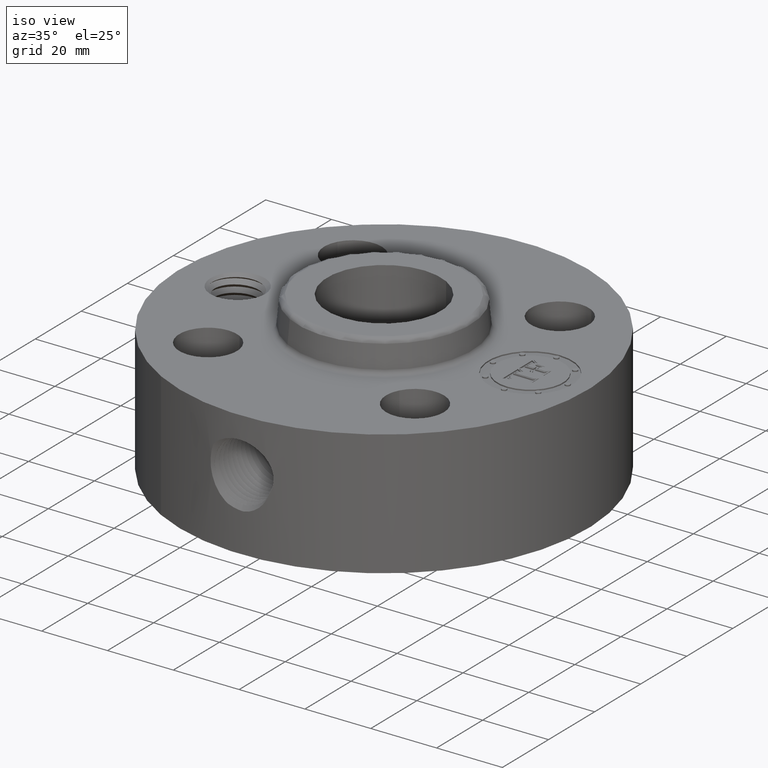
[diagram: clean part render]
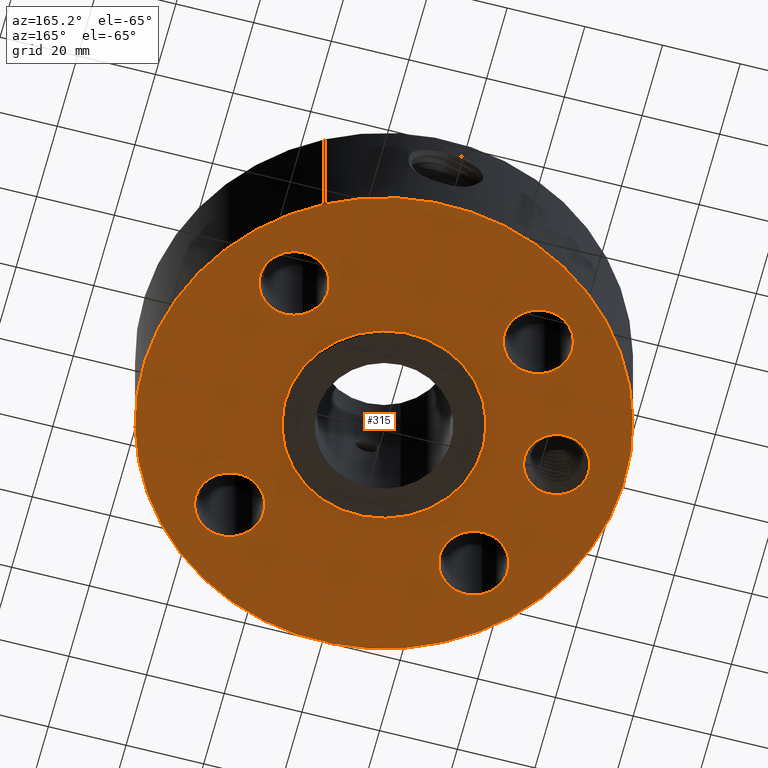
[diagram: tour spotlight — one face highlighted and labeled with its STEP entity id]
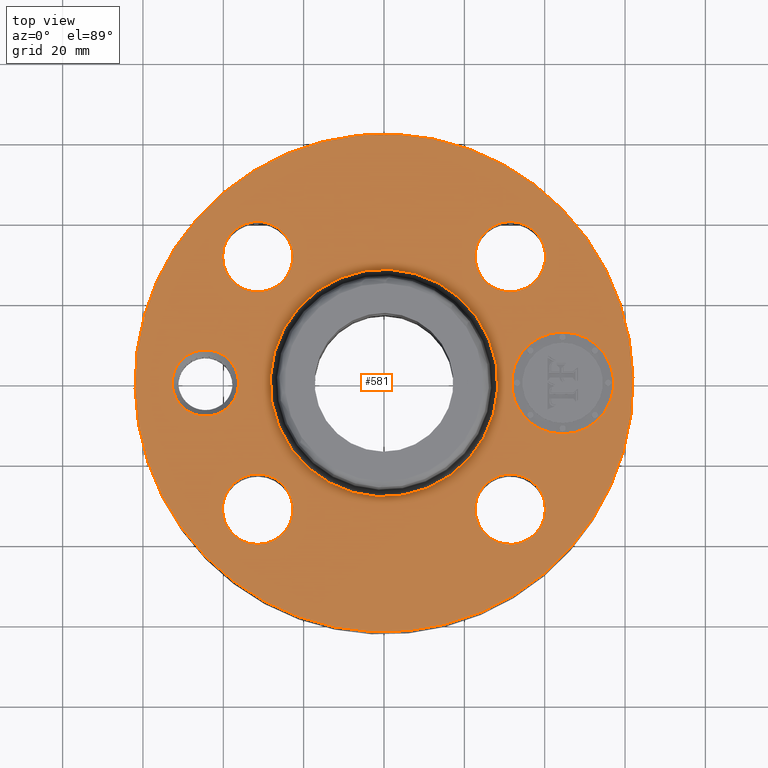
[diagram: tour spotlight — one face highlighted and labeled with its STEP entity id]
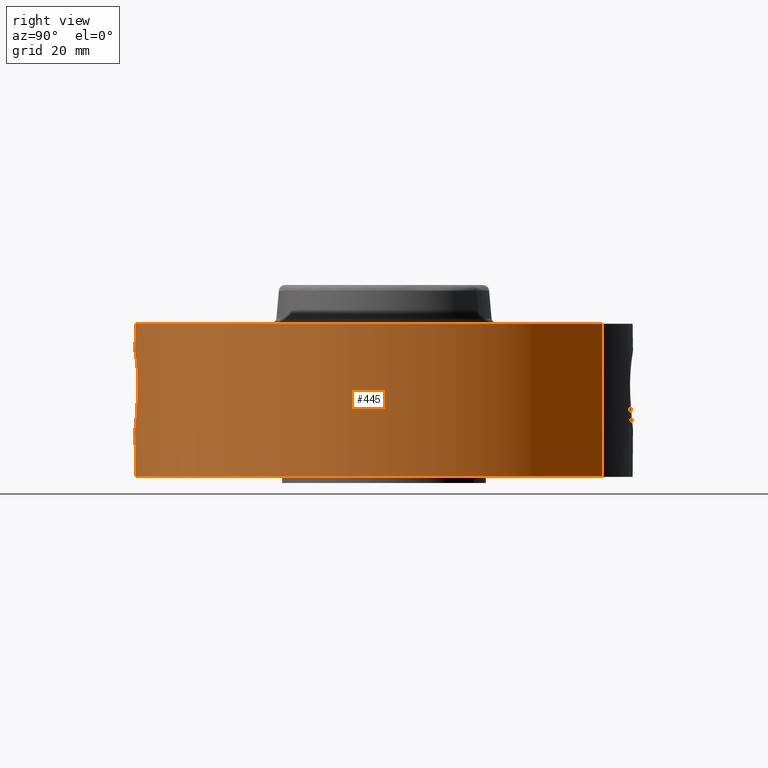
[diagram: tour spotlight — one face highlighted and labeled with its STEP entity id]
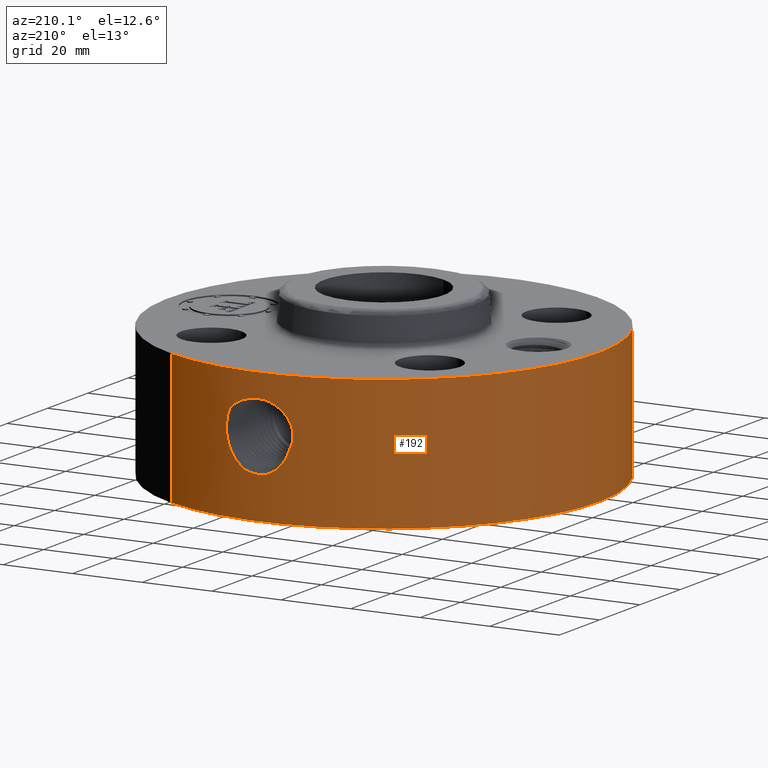
[diagram: tour spotlight — one face highlighted and labeled with its STEP entity id]
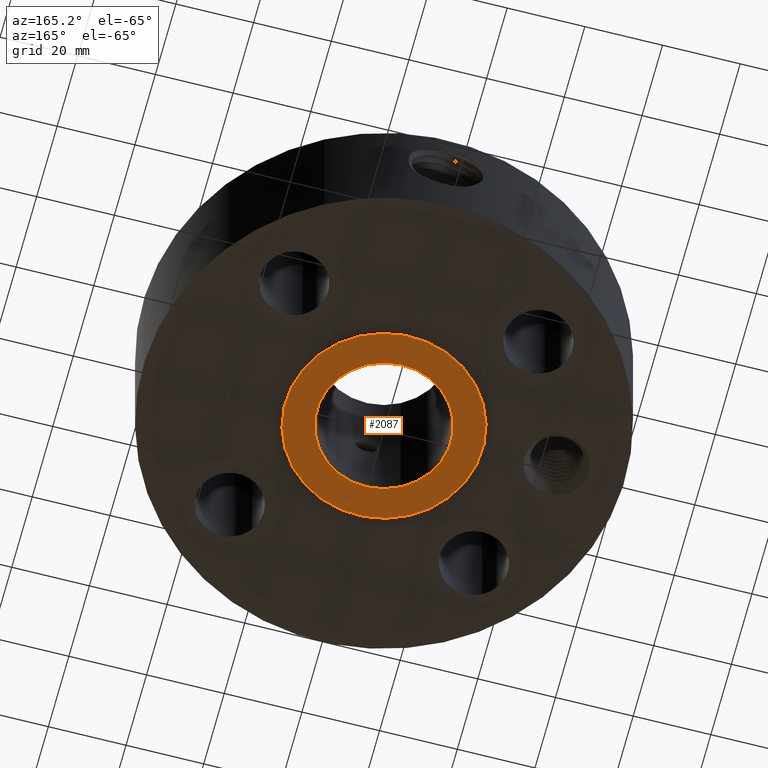
[diagram: tour spotlight — one face highlighted and labeled with its STEP entity id]
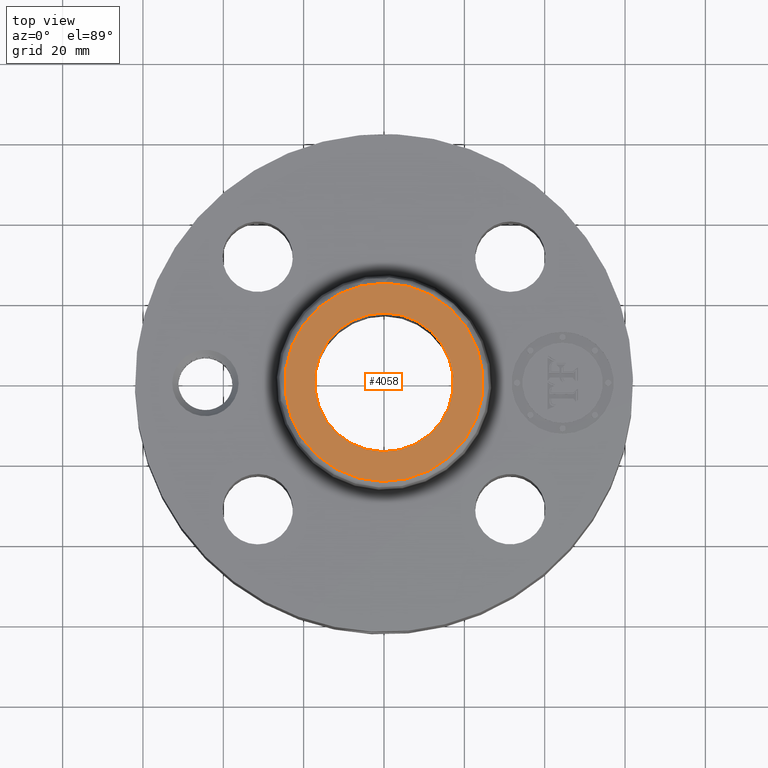
[diagram: tour spotlight — one face highlighted and labeled with its STEP entity id]
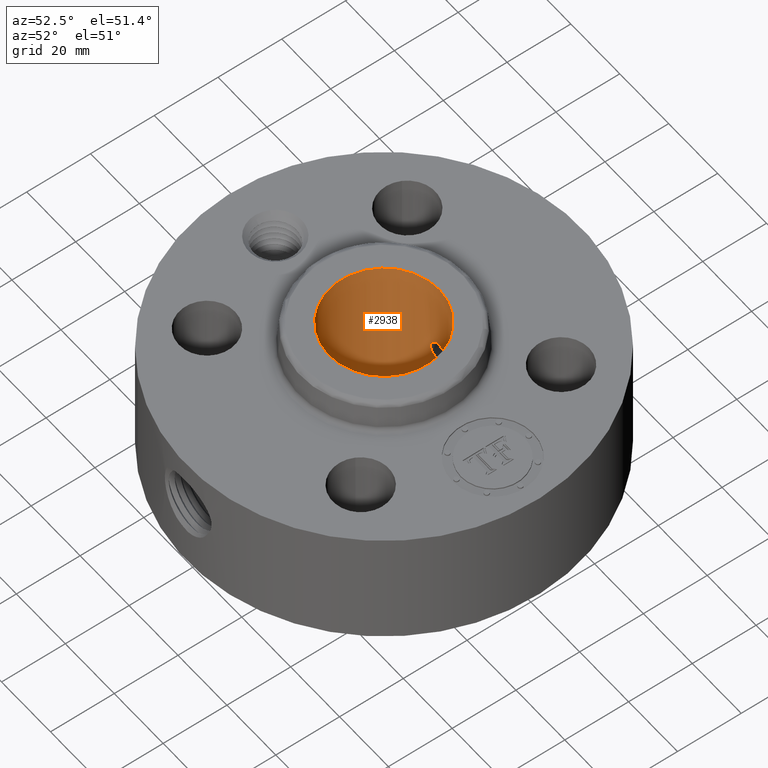
[diagram: tour spotlight — one face highlighted and labeled with its STEP entity id]
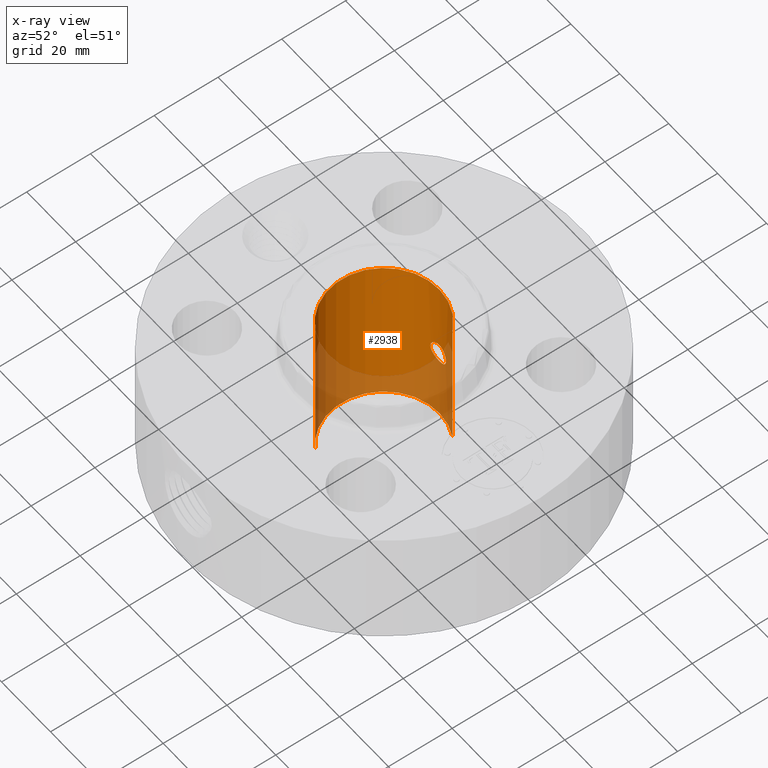
[diagram: x-ray of the same camera — body ghosted, this tour face saturated]
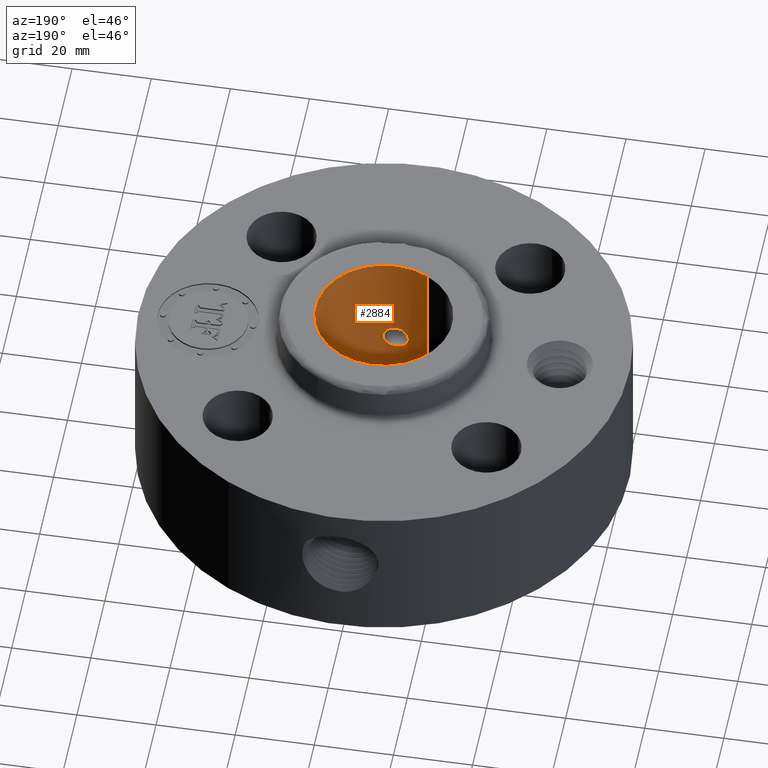
[diagram: tour spotlight — one face highlighted and labeled with its STEP entity id]
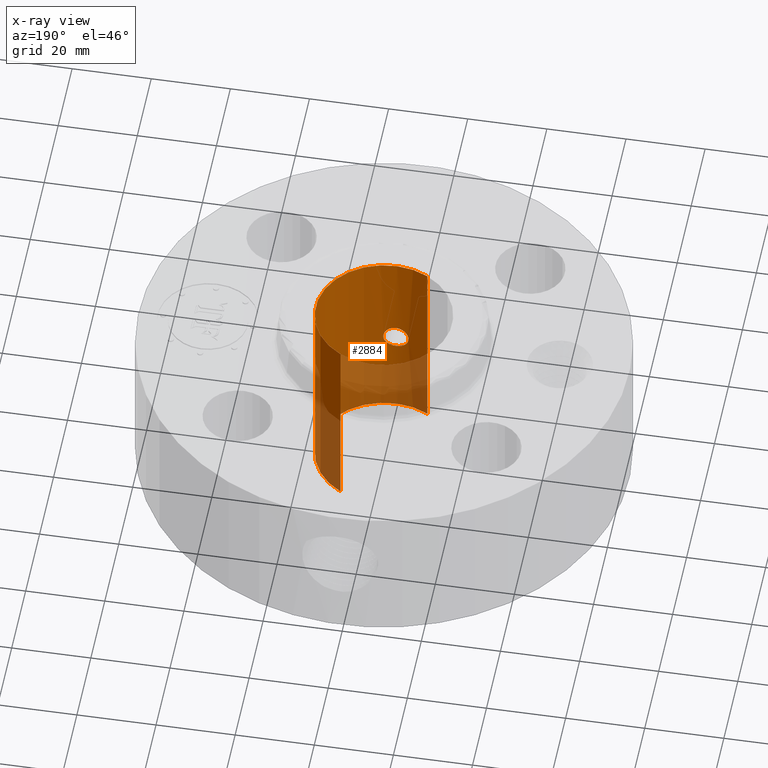
[diagram: x-ray of the same camera — body ghosted, this tour face saturated]
A machine part: a face-by-face anatomy tour. The part has 762 B-rep faces; the first image is the clean iso view, then the 8 largest visible faces are spotlighted one at a time (largest first), each with its STEP entity span.

Face 1 — auxiliary view, entity #315. In plain terms, the highlighted planar face has unit normal (0, 0, -1).
Definition (entity closure, byte-faithful):
#42=AXIS2_PLACEMENT_3D('Circle Axis2P3D',#40,#41,$) ;
#196=AXIS2_PLACEMENT_3D('Plane Axis2P3D',#193,#194,#195) ;
#200=AXIS2_PLACEMENT_3D('Circle Axis2P3D',#198,#199,$) ;
#209=AXIS2_PLACEMENT_3D('Circle Axis2P3D',#207,#208,$) ;
#218=AXIS2_PLACEMENT_3D('Circle Axis2P3D',#216,#217,$) ;
#227=AXIS2_PLACEMENT_3D('Circle Axis2P3D',#225,#226,$) ;
#236=AXIS2_PLACEMENT_3D('Circle Axis2P3D',#234,#235,$) ;
#245=AXIS2_PLACEMENT_3D('Circle Axis2P3D',#243,#244,$) ;
#254=AXIS2_PLACEMENT_3D('Circle Axis2P3D',#252,#253,$) ;
#263=AXIS2_PLACEMENT_3D('Circle Axis2P3D',#261,#262,$) ;
#272=AXIS2_PLACEMENT_3D('Circle Axis2P3D',#270,#271,$) ;
#281=AXIS2_PLACEMENT_3D('Circle Axis2P3D',#279,#280,$) ;
#290=AXIS2_PLACEMENT_3D('Circle Axis2P3D',#288,#289,$) ;
#299=AXIS2_PLACEMENT_3D('Circle Axis2P3D',#297,#298,$) ;
#308=AXIS2_PLACEMENT_3D('Circle Axis2P3D',#306,#307,$) ;
#40=CARTESIAN_POINT('Axis2P3D Location',(0.,0.,0.0600000000002)) ;
#44=CARTESIAN_POINT('Vertex',(-1.1697983142,-2.14130145102,0.0600000000002)) ;
#46=CARTESIAN_POINT('Vertex',(1.1697983142,2.14130145102,0.0600000000002)) ;
#193=CARTESIAN_POINT('Axis2P3D Location',(0.,1.,0.0600000000002)) ;
#198=CARTESIAN_POINT('Axis2P3D Location',(0.,0.,0.0600000000002)) ;
#207=CARTESIAN_POINT('Axis2P3D Location',(-1.75000000001,1.39870617276E-016,0.0600000000002)) ;
#211=CARTESIAN_POINT('Vertex',(-1.46423717829,-0.156112941009,0.0600000000002)) ;
#213=CARTESIAN_POINT('Vertex',(-2.03576282172,0.156112941009,0.0600000000002)) ;
#216=CARTESIAN_POINT('Axis2P3D Location',(-1.75000000001,1.39870617276E-016,0.0600000000002)) ;
#225=CARTESIAN_POINT('Axis2P3D Location',(1.23743686708,-1.23743686708,0.0600000000002)) ;
#229=CARTESIAN_POINT('Vertex',(1.54020285093,-1.4028386779,0.0600000000002)) ;
#231=CARTESIAN_POINT('Vertex',(0.934670883228,-1.07203505626,0.0600000000002)) ;
#234=CARTESIAN_POINT('Axis2P3D Location',(1.23743686708,-1.23743686708,0.0600000000002)) ;
#243=CARTESIAN_POINT('Axis2P3D Location',(0.,0.,0.0600000000002)) ;
#247=CARTESIAN_POINT('Vertex',(0.479425538606,0.877582561894,0.0600000000002)) ;
#249=CARTESIAN_POINT('Vertex',(-0.479425538606,-0.877582561894,0.0600000000002)) ;
#252=CARTESIAN_POINT('Axis2P3D Location',(0.,0.,0.0600000000002)) ;
#261=CARTESIAN_POINT('Axis2P3D Location',(-1.23743686708,-1.23743686708,0.0600000000002)) ;
#265=CARTESIAN_POINT('Vertex',(-1.07203505626,-0.934670883228,0.0600000000002)) ;
#267=CARTESIAN_POINT('Vertex',(-1.4028386779,-1.54020285093,0.0600000000002)) ;
#270=CARTESIAN_POINT('Axis2P3D Location',(-1.23743686708,-1.23743686708,0.0600000000002)) ;
#279=CARTESIAN_POINT('Axis2P3D Location',(-1.23743686708,1.23743686708,0.0600000000002)) ;
#283=CARTESIAN_POINT('Vertex',(-0.934670883228,1.07203505626,0.0600000000002)) ;
#285=CARTESIAN_POINT('Vertex',(-1.54020285093,1.4028386779,0.0600000000002)) ;
#288=CARTESIAN_POINT('Axis2P3D Location',(-1.23743686708,1.23743686708,0.0600000000002)) ;
#297=CARTESIAN_POINT('Axis2P3D Location',(1.23743686708,1.23743686708,0.0600000000002)) ;
#301=CARTESIAN_POINT('Vertex',(1.07203505626,0.934670883228,0.0600000000002)) ;
#303=CARTESIAN_POINT('Vertex',(1.4028386779,1.54020285093,0.0600000000002)) ;
#306=CARTESIAN_POINT('Axis2P3D Location',(1.23743686708,1.23743686708,0.0600000000002)) ;
#41=DIRECTION('Axis2P3D Direction',(0.,0.,-0.0393700787402)) ;
#194=DIRECTION('Axis2P3D Direction',(0.,0.,-0.0393700787402)) ;
#195=DIRECTION('Axis2P3D XDirection',(0.0393700787402,0.,0.)) ;
#199=DIRECTION('Axis2P3D Direction',(0.,0.,-0.0393700787402)) ;
#208=DIRECTION('Axis2P3D Direction',(0.,0.,-0.0393700787402)) ;
#217=DIRECTION('Axis2P3D Direction',(0.,0.,-0.0393700787402)) ;
#226=DIRECTION('Axis2P3D Direction',(0.,0.,-0.0393700787402)) ;
#235=DIRECTION('Axis2P3D Direction',(0.,0.,-0.0393700787402)) ;
#244=DIRECTION('Axis2P3D Direction',(0.,0.,-0.0393700787402)) ;
#253=DIRECTION('Axis2P3D Direction',(0.,0.,-0.0393700787402)) ;
#262=DIRECTION('Axis2P3D Direction',(0.,0.,-0.0393700787402)) ;
#271=DIRECTION('Axis2P3D Direction',(0.,0.,-0.0393700787402)) ;
#280=DIRECTION('Axis2P3D Direction',(0.,0.,-0.0393700787402)) ;
#289=DIRECTION('Axis2P3D Direction',(0.,0.,-0.0393700787402)) ;
#298=DIRECTION('Axis2P3D Direction',(0.,0.,-0.0393700787402)) ;
#307=DIRECTION('Axis2P3D Direction',(0.,0.,-0.0393700787402)) ;
#204=ORIENTED_EDGE('',*,*,#48,.T.) ;
#205=ORIENTED_EDGE('',*,*,#202,.T.) ;
#222=ORIENTED_EDGE('',*,*,#215,.F.) ;
#223=ORIENTED_EDGE('',*,*,#220,.F.) ;
#240=ORIENTED_EDGE('',*,*,#233,.F.) ;
#241=ORIENTED_EDGE('',*,*,#238,.F.) ;
#258=ORIENTED_EDGE('',*,*,#251,.F.) ;
#259=ORIENTED_EDGE('',*,*,#256,.F.) ;
#276=ORIENTED_EDGE('',*,*,#269,.F.) ;
#277=ORIENTED_EDGE('',*,*,#274,.F.) ;
#294=ORIENTED_EDGE('',*,*,#287,.F.) ;
#295=ORIENTED_EDGE('',*,*,#292,.F.) ;
#312=ORIENTED_EDGE('',*,*,#305,.F.) ;
#313=ORIENTED_EDGE('',*,*,#310,.F.) ;
#224=FACE_BOUND('',#221,.T.) ;
#242=FACE_BOUND('',#239,.T.) ;
#260=FACE_BOUND('',#257,.T.) ;
#278=FACE_BOUND('',#275,.T.) ;
#296=FACE_BOUND('',#293,.T.) ;
#314=FACE_BOUND('',#311,.T.) ;
#315=ADVANCED_FACE('PartBody',(#206,#224,#242,#260,#278,#296,#314),#197,.T.) ;
#43=CIRCLE('generated circle',#42,2.44000000001) ;
#201=CIRCLE('generated circle',#200,2.44000000001) ;
#210=CIRCLE('generated circle',#209,0.325625000001) ;
#219=CIRCLE('generated circle',#218,0.325625000001) ;
#228=CIRCLE('generated circle',#227,0.345000000001) ;
#237=CIRCLE('generated circle',#236,0.345000000001) ;
#246=CIRCLE('generated circle',#245,1.) ;
#255=CIRCLE('generated circle',#254,1.) ;
#264=CIRCLE('generated circle',#263,0.345000000001) ;
#273=CIRCLE('generated circle',#272,0.345000000001) ;
#282=CIRCLE('generated circle',#281,0.345000000001) ;
#291=CIRCLE('generated circle',#290,0.345000000001) ;
#300=CIRCLE('generated circle',#299,0.345000000001) ;
#309=CIRCLE('generated circle',#308,0.345000000001) ;
#48=EDGE_CURVE('',#45,#47,#43,.T.) ;
#202=EDGE_CURVE('',#47,#45,#201,.T.) ;
#215=EDGE_CURVE('',#212,#214,#210,.T.) ;
#220=EDGE_CURVE('',#214,#212,#219,.T.) ;
#233=EDGE_CURVE('',#230,#232,#228,.T.) ;
#238=EDGE_CURVE('',#232,#230,#237,.T.) ;
#251=EDGE_CURVE('',#248,#250,#246,.T.) ;
#256=EDGE_CURVE('',#250,#248,#255,.T.) ;
#269=EDGE_CURVE('',#266,#268,#264,.T.) ;
#274=EDGE_CURVE('',#268,#266,#273,.T.) ;
#287=EDGE_CURVE('',#284,#286,#282,.T.) ;
#292=EDGE_CURVE('',#286,#284,#291,.T.) ;
#305=EDGE_CURVE('',#302,#304,#300,.T.) ;
#310=EDGE_CURVE('',#304,#302,#309,.T.) ;
#203=EDGE_LOOP('',(#204,#205)) ;
#221=EDGE_LOOP('',(#222,#223)) ;
#239=EDGE_LOOP('',(#240,#241)) ;
#257=EDGE_LOOP('',(#258,#259)) ;
#275=EDGE_LOOP('',(#276,#277)) ;
#293=EDGE_LOOP('',(#294,#295)) ;
#311=EDGE_LOOP('',(#312,#313)) ;
#206=FACE_OUTER_BOUND('',#203,.T.) ;
#197=PLANE('',#196) ;
#45=VERTEX_POINT('',#44) ;
#47=VERTEX_POINT('',#46) ;
#212=VERTEX_POINT('',#211) ;
#214=VERTEX_POINT('',#213) ;
#230=VERTEX_POINT('',#229) ;
#232=VERTEX_POINT('',#231) ;
#248=VERTEX_POINT('',#247) ;
#250=VERTEX_POINT('',#249) ;
#266=VERTEX_POINT('',#265) ;
#268=VERTEX_POINT('',#267) ;
#284=VERTEX_POINT('',#283) ;
#286=VERTEX_POINT('',#285) ;
#302=VERTEX_POINT('',#301) ;
#304=VERTEX_POINT('',#303) ;

Face 2 — top view, entity #581. In plain terms, the highlighted planar face has unit normal (0, 0, -1).
Definition (entity closure, byte-faithful):
#58=AXIS2_PLACEMENT_3D('Circle Axis2P3D',#56,#57,$) ;
#318=AXIS2_PLACEMENT_3D('Circle Axis2P3D',#316,#317,$) ;
#449=AXIS2_PLACEMENT_3D('Plane Axis2P3D',#446,#447,#448) ;
#457=AXIS2_PLACEMENT_3D('Circle Axis2P3D',#455,#456,$) ;
#466=AXIS2_PLACEMENT_3D('Circle Axis2P3D',#464,#465,$) ;
#475=AXIS2_PLACEMENT_3D('Circle Axis2P3D',#473,#474,$) ;
#484=AXIS2_PLACEMENT_3D('Circle Axis2P3D',#482,#483,$) ;
#493=AXIS2_PLACEMENT_3D('Circle Axis2P3D',#491,#492,$) ;
#502=AXIS2_PLACEMENT_3D('Circle Axis2P3D',#500,#501,$) ;
#511=AXIS2_PLACEMENT_3D('Circle Axis2P3D',#509,#510,$) ;
#520=AXIS2_PLACEMENT_3D('Circle Axis2P3D',#518,#519,$) ;
#529=AXIS2_PLACEMENT_3D('Circle Axis2P3D',#527,#528,$) ;
#538=AXIS2_PLACEMENT_3D('Circle Axis2P3D',#536,#537,$) ;
#547=AXIS2_PLACEMENT_3D('Circle Axis2P3D',#545,#546,$) ;
#556=AXIS2_PLACEMENT_3D('Circle Axis2P3D',#554,#555,$) ;
#565=AXIS2_PLACEMENT_3D('Circle Axis2P3D',#563,#564,$) ;
#574=AXIS2_PLACEMENT_3D('Circle Axis2P3D',#572,#573,$) ;
#53=CARTESIAN_POINT('Vertex',(-1.1697983142,-2.14130145102,1.56000000001)) ;
#56=CARTESIAN_POINT('Axis2P3D Location',(0.,0.,1.56000000001)) ;
#60=CARTESIAN_POINT('Vertex',(1.1697983142,2.14130145102,1.56000000001)) ;
#316=CARTESIAN_POINT('Axis2P3D Location',(0.,0.,1.56000000001)) ;
#446=CARTESIAN_POINT('Axis2P3D Location',(0.,2.44000000001,1.56000000001)) ;
#455=CARTESIAN_POINT('Axis2P3D Location',(-1.75000000001,-1.39870617276E-015,1.56000000001)) ;
#459=CARTESIAN_POINT('Vertex',(-2.03576282172,0.156112941009,1.56000000001)) ;
#461=CARTESIAN_POINT('Vertex',(-1.46423717829,-0.156112941009,1.56000000001)) ;
#464=CARTESIAN_POINT('Axis2P3D Location',(-1.75000000001,-1.39870617276E-015,1.56000000001)) ;
#473=CARTESIAN_POINT('Axis2P3D Location',(1.23743686708,-1.23743686708,1.56000000001)) ;
#477=CARTESIAN_POINT('Vertex',(0.934670883228,-1.07203505626,1.56000000001)) ;
#479=CARTESIAN_POINT('Vertex',(1.54020285093,-1.4028386779,1.56000000001)) ;
#482=CARTESIAN_POINT('Axis2P3D Location',(1.23743686708,-1.23743686708,1.56000000001)) ;
#491=CARTESIAN_POINT('Axis2P3D Location',(0.,0.,1.56000000001)) ;
#495=CARTESIAN_POINT('Vertex',(-0.534549824921,-0.978486891162,1.56000000001)) ;
#497=CARTESIAN_POINT('Vertex',(0.534549824921,0.978486891162,1.56000000001)) ;
#500=CARTESIAN_POINT('Axis2P3D Location',(0.,0.,1.56000000001)) ;
#509=CARTESIAN_POINT('Axis2P3D Location',(-1.23743686708,-1.23743686708,1.56000000001)) ;
#513=CARTESIAN_POINT('Vertex',(-1.4028386779,-1.54020285093,1.56000000001)) ;
#515=CARTESIAN_POINT('Vertex',(-1.07203505626,-0.934670883228,1.56000000001)) ;
#518=CARTESIAN_POINT('Axis2P3D Location',(-1.23743686708,-1.23743686708,1.56000000001)) ;
#527=CARTESIAN_POINT('Axis2P3D Location',(-1.23743686708,1.23743686708,1.56000000001)) ;
#531=CARTESIAN_POINT('Vertex',(-1.54020285093,1.4028386779,1.56000000001)) ;
#533=CARTESIAN_POINT('Vertex',(-0.934670883228,1.07203505626,1.56000000001)) ;
#536=CARTESIAN_POINT('Axis2P3D Location',(-1.23743686708,1.23743686708,1.56000000001)) ;
#545=CARTESIAN_POINT('Axis2P3D Location',(1.23743686708,1.23743686708,1.56000000001)) ;
#549=CARTESIAN_POINT('Vertex',(1.4028386779,1.54020285093,1.56000000001)) ;
#551=CARTESIAN_POINT('Vertex',(1.07203505626,0.934670883228,1.56000000001)) ;
#554=CARTESIAN_POINT('Axis2P3D Location',(1.23743686708,1.23743686708,1.56000000001)) ;
#563=CARTESIAN_POINT('Axis2P3D Location',(1.75000000001,2.79741234551E-016,1.56000000001)) ;
#567=CARTESIAN_POINT('Vertex',(1.75000000001,0.499999995002,1.56000000001)) ;
#569=CARTESIAN_POINT('Vertex',(1.75000000001,-0.499999995002,1.56000000001)) ;
#572=CARTESIAN_POINT('Axis2P3D Location',(1.75000000001,2.79741234551E-016,1.56000000001)) ;
#57=DIRECTION('Axis2P3D Direction',(0.,0.,-0.0393700787402)) ;
#317=DIRECTION('Axis2P3D Direction',(0.,0.,-0.0393700787402)) ;
#447=DIRECTION('Axis2P3D Direction',(0.,0.,-0.0393700787402)) ;
#448=DIRECTION('Axis2P3D XDirection',(0.0393700787402,0.,0.)) ;
#456=DIRECTION('Axis2P3D Direction',(0.,0.,-0.0393700787402)) ;
#465=DIRECTION('Axis2P3D Direction',(0.,0.,-0.0393700787402)) ;
#474=DIRECTION('Axis2P3D Direction',(0.,0.,-0.0393700787402)) ;
#483=DIRECTION('Axis2P3D Direction',(0.,0.,-0.0393700787402)) ;
#492=DIRECTION('Axis2P3D Direction',(0.,0.,-0.0393700787402)) ;
#501=DIRECTION('Axis2P3D Direction',(0.,0.,-0.0393700787402)) ;
#510=DIRECTION('Axis2P3D Direction',(0.,0.,-0.0393700787402)) ;
#519=DIRECTION('Axis2P3D Direction',(0.,0.,-0.0393700787402)) ;
#528=DIRECTION('Axis2P3D Direction',(0.,0.,-0.0393700787402)) ;
#537=DIRECTION('Axis2P3D Direction',(0.,0.,-0.0393700787402)) ;
#546=DIRECTION('Axis2P3D Direction',(0.,0.,-0.0393700787402)) ;
#555=DIRECTION('Axis2P3D Direction',(0.,0.,-0.0393700787402)) ;
#564=DIRECTION('Axis2P3D Direction',(0.,0.,-0.0393700787402)) ;
#573=DIRECTION('Axis2P3D Direction',(0.,0.,-0.0393700787402)) ;
#452=ORIENTED_EDGE('',*,*,#320,.F.) ;
#453=ORIENTED_EDGE('',*,*,#62,.F.) ;
#470=ORIENTED_EDGE('',*,*,#463,.T.) ;
#471=ORIENTED_EDGE('',*,*,#468,.T.) ;
#488=ORIENTED_EDGE('',*,*,#481,.T.) ;
#489=ORIENTED_EDGE('',*,*,#486,.T.) ;
#506=ORIENTED_EDGE('',*,*,#499,.T.) ;
#507=ORIENTED_EDGE('',*,*,#504,.T.) ;
#524=ORIENTED_EDGE('',*,*,#517,.T.) ;
#525=ORIENTED_EDGE('',*,*,#522,.T.) ;
#542=ORIENTED_EDGE('',*,*,#535,.T.) ;
#543=ORIENTED_EDGE('',*,*,#540,.T.) ;
#560=ORIENTED_EDGE('',*,*,#553,.T.) ;
#561=ORIENTED_EDGE('',*,*,#558,.T.) ;
#578=ORIENTED_EDGE('',*,*,#571,.T.) ;
#579=ORIENTED_EDGE('',*,*,#576,.T.) ;
#472=FACE_BOUND('',#469,.T.) ;
#490=FACE_BOUND('',#487,.T.) ;
#508=FACE_BOUND('',#505,.T.) ;
#526=FACE_BOUND('',#523,.T.) ;
#544=FACE_BOUND('',#541,.T.) ;
#562=FACE_BOUND('',#559,.T.) ;
#580=FACE_BOUND('',#577,.T.) ;
#581=ADVANCED_FACE('PartBody',(#454,#472,#490,#508,#526,#544,#562,#580),#450,.F.) ;
#59=CIRCLE('generated circle',#58,2.44000000001) ;
#319=CIRCLE('generated circle',#318,2.44000000001) ;
#458=CIRCLE('generated circle',#457,0.325625000001) ;
#467=CIRCLE('generated circle',#466,0.325625000001) ;
#476=CIRCLE('generated circle',#475,0.345000000001) ;
#485=CIRCLE('generated circle',#484,0.345000000001) ;
#494=CIRCLE('generated circle',#493,1.11497987045) ;
#503=CIRCLE('generated circle',#502,1.11497987045) ;
#512=CIRCLE('generated circle',#511,0.345000000001) ;
#521=CIRCLE('generated circle',#520,0.345000000001) ;
#530=CIRCLE('generated circle',#529,0.345000000001) ;
#539=CIRCLE('generated circle',#538,0.345000000001) ;
#548=CIRCLE('generated circle',#547,0.345000000001) ;
#557=CIRCLE('generated circle',#556,0.345000000001) ;
#566=CIRCLE('generated circle',#565,0.499999995002) ;
#575=CIRCLE('generated circle',#574,0.499999995002) ;
#62=EDGE_CURVE('',#54,#61,#59,.T.) ;
#320=EDGE_CURVE('',#61,#54,#319,.T.) ;
#463=EDGE_CURVE('',#460,#462,#458,.T.) ;
#468=EDGE_CURVE('',#462,#460,#467,.T.) ;
#481=EDGE_CURVE('',#478,#480,#476,.T.) ;
#486=EDGE_CURVE('',#480,#478,#485,.T.) ;
#499=EDGE_CURVE('',#496,#498,#494,.T.) ;
#504=EDGE_CURVE('',#498,#496,#503,.T.) ;
#517=EDGE_CURVE('',#514,#516,#512,.T.) ;
#522=EDGE_CURVE('',#516,#514,#521,.T.) ;
#535=EDGE_CURVE('',#532,#534,#530,.T.) ;
#540=EDGE_CURVE('',#534,#532,#539,.T.) ;
#553=EDGE_CURVE('',#550,#552,#548,.T.) ;
#558=EDGE_CURVE('',#552,#550,#557,.T.) ;
#571=EDGE_CURVE('',#568,#570,#566,.T.) ;
#576=EDGE_CURVE('',#570,#568,#575,.T.) ;
#451=EDGE_LOOP('',(#452,#453)) ;
#469=EDGE_LOOP('',(#470,#471)) ;
#487=EDGE_LOOP('',(#488,#489)) ;
#505=EDGE_LOOP('',(#506,#507)) ;
#523=EDGE_LOOP('',(#524,#525)) ;
#541=EDGE_LOOP('',(#542,#543)) ;
#559=EDGE_LOOP('',(#560,#561)) ;
#577=EDGE_LOOP('',(#578,#579)) ;
#454=FACE_OUTER_BOUND('',#451,.T.) ;
#450=PLANE('',#449) ;
#54=VERTEX_POINT('',#53) ;
#61=VERTEX_POINT('',#60) ;
#460=VERTEX_POINT('',#459) ;
#462=VERTEX_POINT('',#461) ;
#478=VERTEX_POINT('',#477) ;
#480=VERTEX_POINT('',#479) ;
#496=VERTEX_POINT('',#495) ;
#498=VERTEX_POINT('',#497) ;
#514=VERTEX_POINT('',#513) ;
#516=VERTEX_POINT('',#515) ;
#532=VERTEX_POINT('',#531) ;
#534=VERTEX_POINT('',#533) ;
#550=VERTEX_POINT('',#549) ;
#552=VERTEX_POINT('',#551) ;
#568=VERTEX_POINT('',#567) ;
#570=VERTEX_POINT('',#569) ;

Face 3 — right view, entity #445. In plain terms, the highlighted cylindrical surface (partial cylindrical patch) has radius 61.976 mm, axis along (0, 0, -1).
Definition (entity closure, byte-faithful):
#38=AXIS2_PLACEMENT_3D('Cylinder Axis2P3D',#35,#36,#37) ;
#200=AXIS2_PLACEMENT_3D('Circle Axis2P3D',#198,#199,$) ;
#318=AXIS2_PLACEMENT_3D('Circle Axis2P3D',#316,#317,$) ;
#35=CARTESIAN_POINT('Axis2P3D Location',(0.,0.,0.970000000004)) ;
#44=CARTESIAN_POINT('Vertex',(-1.1697983142,-2.14130145102,0.0600000000002)) ;
#46=CARTESIAN_POINT('Vertex',(1.1697983142,2.14130145102,0.0600000000002)) ;
#49=CARTESIAN_POINT('Line Origine',(-1.1697983142,-2.14130145102,0.810000000003)) ;
#53=CARTESIAN_POINT('Vertex',(-1.1697983142,-2.14130145102,1.56000000001)) ;
#60=CARTESIAN_POINT('Vertex',(1.1697983142,2.14130145102,1.56000000001)) ;
#63=CARTESIAN_POINT('Line Origine',(1.1697983142,2.14130145102,0.810000000003)) ;
#198=CARTESIAN_POINT('Axis2P3D Location',(0.,0.,0.0600000000002)) ;
#316=CARTESIAN_POINT('Axis2P3D Location',(0.,0.,1.56000000001)) ;
#328=CARTESIAN_POINT('Control Point',(0.16192159428,-2.4346214074,1.25474246112)) ;
#329=CARTESIAN_POINT('Control Point',(0.124761678529,-2.43709283592,1.27394650423)) ;
#330=CARTESIAN_POINT('Control Point',(0.0845285010663,-2.43901250296,1.28730102498)) ;
#331=CARTESIAN_POINT('Control Point',(0.0426266264081,-2.43998754964,1.2940330846)) ;
#332=CARTESIAN_POINT('Control Point',(0.000718733829035,-2.43999989415,1.29411849633)) ;
#333=CARTESIAN_POINT('Vertex',(0.161921600554,-2.43462140699,1.25474245804)) ;
#335=CARTESIAN_POINT('Vertex',(0.00071846933094,-2.43999989423,1.29411850216)) ;
#339=CARTESIAN_POINT('Control Point',(0.16989837306,-2.43407776024,1.25094225976)) ;
#340=CARTESIAN_POINT('Control Point',(0.167252431002,-2.43426244672,1.25223769882)) ;
#341=CARTESIAN_POINT('Control Point',(0.164593290178,-2.43444371847,1.25350443879)) ;
#342=CARTESIAN_POINT('Control Point',(0.161921599901,-2.43462140702,1.25474245516)) ;
#343=CARTESIAN_POINT('Vertex',(0.16989837306,-2.43407776024,1.25094225976)) ;
#347=CARTESIAN_POINT('Control Point',(0.328116375832,-2.41783780348,0.808661705007)) ;
#348=CARTESIAN_POINT('Control Point',(0.351266820574,-2.41469613699,0.847920653399)) ;
#349=CARTESIAN_POINT('Control Point',(0.367537068291,-2.41220597774,0.891967145642)) ;
#350=CARTESIAN_POINT('Control Point',(0.374754426077,-2.41102143693,0.93964709996)) ;
#351=CARTESIAN_POINT('Control Point',(0.370017243738,-2.41184047452,1.00871566147)) ;
#352=CARTESIAN_POINT('Control Point',(0.346589033701,-2.41527741307,1.0725719509)) ;
#353=CARTESIAN_POINT('Control Point',(0.337668385424,-2.41655315054,1.09162203602)) ;
#354=CARTESIAN_POINT('Control Point',(0.307764301181,-2.42066054004,1.1438749814)) ;
#355=CARTESIAN_POINT('Control Point',(0.266998882778,-2.42558826776,1.18820864016)) ;
#356=CARTESIAN_POINT('Control Point',(0.236947873255,-2.428785004,1.21314596385)) ;
#357=CARTESIAN_POINT('Control Point',(0.204355865072,-2.4316726309,1.23407205562)) ;
#358=CARTESIAN_POINT('Control Point',(0.16989837306,-2.43407776024,1.25094225976)) ;
#359=CARTESIAN_POINT('Vertex',(0.328116855676,-2.4178375316,0.808661757571)) ;
#363=CARTESIAN_POINT('Control Point',(0.320424227439,-2.41886922228,0.790797428483)) ;
#364=CARTESIAN_POINT('Control Point',(0.32315137982,-2.41850796022,0.796680963763)) ;
#365=CARTESIAN_POINT('Control Point',(0.325717354748,-2.41816336819,0.802639990313)) ;
#366=CARTESIAN_POINT('Control Point',(0.328118233166,-2.41783755143,0.808665582028)) ;
#367=CARTESIAN_POINT('Vertex',(0.320424889206,-2.41886937017,0.790798496527)) ;
#371=CARTESIAN_POINT('Control Point',(0.0268393869742,-2.43985238229,0.530897557486)) ;
#372=CARTESIAN_POINT('Control Point',(0.111814828557,-2.43891761723,0.542087008344)) ;
#373=CARTESIAN_POINT('Control Point',(0.192381472742,-2.43423204041,0.582047115168)) ;
#374=CARTESIAN_POINT('Control Point',(0.253315115569,-2.42735806073,0.644291367863)) ;
#375=CARTESIAN_POINT('Control Point',(0.296042119695,-2.42209908944,0.715167636121)) ;
#376=CARTESIAN_POINT('Control Point',(0.320424558949,-2.41886917837,0.790798572524)) ;
#377=CARTESIAN_POINT('Vertex',(0.0268393869742,-2.43985238229,0.530897557486)) ;
#381=CARTESIAN_POINT('Control Point',(0.0268393869742,-2.43985238229,0.530897557486)) ;
#382=CARTESIAN_POINT('Control Point',(0.0178847963814,-2.43995088649,0.530836461707)) ;
#383=CARTESIAN_POINT('Control Point',(0.00893312393865,-2.44000001,0.530995456445)) ;
#384=CARTESIAN_POINT('Control Point',(-2.72878353948E-006,-2.44000000001,0.531374667804)) ;
#385=CARTESIAN_POINT('Vertex',(-2.72878353754E-006,-2.44000000001,0.531374667804)) ;
#389=CARTESIAN_POINT('Control Point',(-0.165476014271,-2.43438240397,0.565083204059)) ;
#390=CARTESIAN_POINT('Control Point',(-0.112562343707,-2.43797918617,0.544988923625)) ;
#391=CARTESIAN_POINT('Control Point',(-0.0565393148666,-2.43999993678,0.533773914324)) ;
#392=CARTESIAN_POINT('Control Point',(-2.72878353514E-006,-2.44000000001,0.531374667804)) ;
#393=CARTESIAN_POINT('Vertex',(-0.165476014271,-2.43438240397,0.565083204059)) ;
#397=CARTESIAN_POINT('Control Point',(-0.165476014271,-2.43438240397,0.565083204059)) ;
#398=CARTESIAN_POINT('Control Point',(-0.175740725453,-2.43368466499,0.570334729546)) ;
#399=CARTESIAN_POINT('Control Point',(-0.185738859904,-2.43293967132,0.576087631637)) ;
#400=CARTESIAN_POINT('Control Point',(-0.195421989316,-2.43216164063,0.582285375744)) ;
#401=CARTESIAN_POINT('Vertex',(-0.195421989316,-2.43216164063,0.582285375744)) ;
#405=CARTESIAN_POINT('Control Point',(-0.195421989316,-2.43216164063,0.582285375744)) ;
#406=CARTESIAN_POINT('Control Point',(-0.247998255521,-2.42793718516,0.615937124177)) ;
#407=CARTESIAN_POINT('Control Point',(-0.293011536383,-2.42289055425,0.660601235593)) ;
#408=CARTESIAN_POINT('Control Point',(-0.328229760172,-2.41805808128,0.712425717437)) ;
#409=CARTESIAN_POINT('Control Point',(-0.382261864301,-2.41005605017,0.829676974243)) ;
#410=CARTESIAN_POINT('Control Point',(-0.395270513625,-2.40773032595,0.958065769537)) ;
#411=CARTESIAN_POINT('Control Point',(-0.390965855311,-2.40847371399,1.02561774609)) ;
#412=CARTESIAN_POINT('Control Point',(-0.37540285235,-2.41110143503,1.09202151236)) ;
#413=CARTESIAN_POINT('Control Point',(-0.348525615673,-2.4149803095,1.15442637902)) ;
#414=CARTESIAN_POINT('Vertex',(-0.348525615673,-2.4149803095,1.15442637902)) ;
#418=CARTESIAN_POINT('Control Point',(-0.348525615673,-2.4149803095,1.15442637902)) ;
#419=CARTESIAN_POINT('Control Point',(-0.294301956473,-2.42280577049,1.21385963823)) ;
#420=CARTESIAN_POINT('Control Point',(-0.22604983657,-2.43110253319,1.2581066071)) ;
#421=CARTESIAN_POINT('Control Point',(-0.151999424151,-2.43708486052,1.28575229226)) ;
#422=CARTESIAN_POINT('Control Point',(-0.0753413751138,-2.44000079858,1.29784713552)) ;
#423=CARTESIAN_POINT('Control Point',(2.58579354728E-005,-2.43999999987,1.29415298447)) ;
#424=CARTESIAN_POINT('Vertex',(2.58579354723E-005,-2.43999999987,1.29415298447)) ;
#428=CARTESIAN_POINT('Control Point',(0.000718469314813,-2.43999989423,1.29411850215)) ;
#429=CARTESIAN_POINT('Control Point',(0.000372184904078,-2.4399999962,1.29413600915)) ;
#430=CARTESIAN_POINT('Control Point',(2.58579482125E-005,-2.43999999987,1.29415298447)) ;
#36=DIRECTION('Axis2P3D Direction',(0.,0.,-0.0393700787402)) ;
#37=DIRECTION('Axis2P3D XDirection',(0.0188750212049,0.0345504945626,0.)) ;
#50=DIRECTION('Vector Direction',(0.,0.,-0.0393700787402)) ;
#64=DIRECTION('Vector Direction',(0.,0.,-0.0393700787402)) ;
#199=DIRECTION('Axis2P3D Direction',(0.,0.,-0.0393700787402)) ;
#317=DIRECTION('Axis2P3D Direction',(0.,0.,-0.0393700787402)) ;
#51=VECTOR('Line Direction',#50,0.0393700787402) ;
#65=VECTOR('Line Direction',#64,0.0393700787402) ;
#322=ORIENTED_EDGE('',*,*,#202,.F.) ;
#323=ORIENTED_EDGE('',*,*,#67,.T.) ;
#324=ORIENTED_EDGE('',*,*,#320,.T.) ;
#325=ORIENTED_EDGE('',*,*,#55,.F.) ;
#433=ORIENTED_EDGE('',*,*,#337,.F.) ;
#434=ORIENTED_EDGE('',*,*,#345,.F.) ;
#435=ORIENTED_EDGE('',*,*,#361,.F.) ;
#436=ORIENTED_EDGE('',*,*,#369,.F.) ;
#437=ORIENTED_EDGE('',*,*,#379,.F.) ;
#438=ORIENTED_EDGE('',*,*,#387,.T.) ;
#439=ORIENTED_EDGE('',*,*,#395,.F.) ;
#440=ORIENTED_EDGE('',*,*,#403,.T.) ;
#441=ORIENTED_EDGE('',*,*,#416,.T.) ;
#442=ORIENTED_EDGE('',*,*,#426,.T.) ;
#443=ORIENTED_EDGE('',*,*,#431,.F.) ;
#444=FACE_BOUND('',#432,.T.) ;
#445=ADVANCED_FACE('PartBody',(#326,#444),#39,.T.) ;
#327=B_SPLINE_CURVE_WITH_KNOTS('',4,(#328,#329,#330,#331,#332),.UNSPECIFIED.,.F.,.U.,(5,5),(0.175518252428,6.37462366418),.UNSPECIFIED.) ;
#338=B_SPLINE_CURVE_WITH_KNOTS('',3,(#339,#340,#341,#342),.UNSPECIFIED.,.F.,.U.,(4,4),(0.,0.330159466826),.UNSPECIFIED.) ;
#346=B_SPLINE_CURVE_WITH_KNOTS('',5,(#347,#348,#349,#350,#351,#352,#353,#354,#355,#356,#357,#358),.UNSPECIFIED.,.F.,.U.,(6,3,3,6),(0.,8.53095212097,12.3556762992,19.521660422),.UNSPECIFIED.) ;
#362=B_SPLINE_CURVE_WITH_KNOTS('',3,(#363,#364,#365,#366),.UNSPECIFIED.,.F.,.U.,(4,4),(9.56540750434,10.2865901382),.UNSPECIFIED.) ;
#370=B_SPLINE_CURVE_WITH_KNOTS('',5,(#371,#372,#373,#374,#375,#376),.UNSPECIFIED.,.F.,.U.,(6,6),(0.,14.8989557162),.UNSPECIFIED.) ;
#380=B_SPLINE_CURVE_WITH_KNOTS('',3,(#381,#382,#383,#384),.UNSPECIFIED.,.F.,.U.,(4,4),(0.,0.93390105156),.UNSPECIFIED.) ;
#388=B_SPLINE_CURVE_WITH_KNOTS('',3,(#389,#390,#391,#392),.UNSPECIFIED.,.F.,.U.,(4,4),(0.,5.9087340434),.UNSPECIFIED.) ;
#396=B_SPLINE_CURVE_WITH_KNOTS('',3,(#397,#398,#399,#400),.UNSPECIFIED.,.F.,.U.,(4,4),(0.,1.203436921),.UNSPECIFIED.) ;
#404=B_SPLINE_CURVE_WITH_KNOTS('',5,(#405,#406,#407,#408,#409,#410,#411,#412,#413),.UNSPECIFIED.,.F.,.U.,(6,3,6),(0.,10.8904564286,22.7389374481),.UNSPECIFIED.) ;
#417=B_SPLINE_CURVE_WITH_KNOTS('',5,(#418,#419,#420,#421,#422,#423),.UNSPECIFIED.,.F.,.U.,(6,6),(0.,14.0876899544),.UNSPECIFIED.) ;
#427=B_SPLINE_CURVE_WITH_KNOTS('',2,(#428,#429,#430),.UNSPECIFIED.,.F.,.U.,(3,3),(1.28066519652,1.30655945912),.UNSPECIFIED.) ;
#201=CIRCLE('generated circle',#200,2.44000000001) ;
#319=CIRCLE('generated circle',#318,2.44000000001) ;
#39=CYLINDRICAL_SURFACE('generated cylinder',#38,2.44000000001) ;
#55=EDGE_CURVE('',#45,#54,#52,.F.) ;
#67=EDGE_CURVE('',#47,#61,#66,.F.) ;
#202=EDGE_CURVE('',#47,#45,#201,.T.) ;
#320=EDGE_CURVE('',#61,#54,#319,.T.) ;
#337=EDGE_CURVE('',#334,#336,#327,.T.) ;
#345=EDGE_CURVE('',#344,#334,#338,.T.) ;
#361=EDGE_CURVE('',#360,#344,#346,.T.) ;
#369=EDGE_CURVE('',#368,#360,#362,.T.) ;
#379=EDGE_CURVE('',#378,#368,#370,.T.) ;
#387=EDGE_CURVE('',#378,#386,#380,.T.) ;
#395=EDGE_CURVE('',#394,#386,#388,.T.) ;
#403=EDGE_CURVE('',#394,#402,#396,.T.) ;
#416=EDGE_CURVE('',#402,#415,#404,.T.) ;
#426=EDGE_CURVE('',#415,#425,#417,.T.) ;
#431=EDGE_CURVE('',#336,#425,#427,.T.) ;
#321=EDGE_LOOP('',(#322,#323,#324,#325)) ;
#432=EDGE_LOOP('',(#433,#434,#435,#436,#437,#438,#439,#440,#441,#442,#443)) ;
#326=FACE_OUTER_BOUND('',#321,.T.) ;
#52=LINE('Line',#49,#51) ;
#66=LINE('Line',#63,#65) ;
#45=VERTEX_POINT('',#44) ;
#47=VERTEX_POINT('',#46) ;
#54=VERTEX_POINT('',#53) ;
#61=VERTEX_POINT('',#60) ;
#334=VERTEX_POINT('',#333) ;
#336=VERTEX_POINT('',#335) ;
#344=VERTEX_POINT('',#343) ;
#360=VERTEX_POINT('',#359) ;
#368=VERTEX_POINT('',#367) ;
#378=VERTEX_POINT('',#377) ;
#386=VERTEX_POINT('',#385) ;
#394=VERTEX_POINT('',#393) ;
#402=VERTEX_POINT('',#401) ;
#415=VERTEX_POINT('',#414) ;
#425=VERTEX_POINT('',#424) ;

Face 4 — auxiliary view, entity #192. In plain terms, the highlighted cylindrical surface (partial cylindrical patch) has radius 61.976 mm, axis along (0, 0, -1).
Definition (entity closure, byte-faithful):
#38=AXIS2_PLACEMENT_3D('Cylinder Axis2P3D',#35,#36,#37) ;
#42=AXIS2_PLACEMENT_3D('Circle Axis2P3D',#40,#41,$) ;
#58=AXIS2_PLACEMENT_3D('Circle Axis2P3D',#56,#57,$) ;
#35=CARTESIAN_POINT('Axis2P3D Location',(0.,0.,0.970000000004)) ;
#40=CARTESIAN_POINT('Axis2P3D Location',(0.,0.,0.0600000000002)) ;
#44=CARTESIAN_POINT('Vertex',(-1.1697983142,-2.14130145102,0.0600000000002)) ;
#46=CARTESIAN_POINT('Vertex',(1.1697983142,2.14130145102,0.0600000000002)) ;
#49=CARTESIAN_POINT('Line Origine',(-1.1697983142,-2.14130145102,0.810000000003)) ;
#53=CARTESIAN_POINT('Vertex',(-1.1697983142,-2.14130145102,1.56000000001)) ;
#56=CARTESIAN_POINT('Axis2P3D Location',(0.,0.,1.56000000001)) ;
#60=CARTESIAN_POINT('Vertex',(1.1697983142,2.14130145102,1.56000000001)) ;
#63=CARTESIAN_POINT('Line Origine',(1.1697983142,2.14130145102,0.810000000003)) ;
#75=CARTESIAN_POINT('Control Point',(-0.16192159428,2.4346214074,1.25474246112)) ;
#76=CARTESIAN_POINT('Control Point',(-0.124761678529,2.43709283592,1.27394650423)) ;
#77=CARTESIAN_POINT('Control Point',(-0.0845285010659,2.43901250296,1.28730102498)) ;
#78=CARTESIAN_POINT('Control Point',(-0.0426266264087,2.43998754964,1.2940330846)) ;
#79=CARTESIAN_POINT('Control Point',(-0.000718733828844,2.43999989415,1.29411849633)) ;
#80=CARTESIAN_POINT('Vertex',(-0.161921600554,2.43462140699,1.25474245803)) ;
#82=CARTESIAN_POINT('Vertex',(-0.000718469330946,2.43999989423,1.29411850216)) ;
#86=CARTESIAN_POINT('Control Point',(-0.16989837306,2.43407776024,1.25094225976)) ;
#87=CARTESIAN_POINT('Control Point',(-0.167252431002,2.43426244672,1.25223769882)) ;
#88=CARTESIAN_POINT('Control Point',(-0.164593290179,2.43444371847,1.25350443879)) ;
#89=CARTESIAN_POINT('Control Point',(-0.161921599901,2.43462140702,1.25474245516)) ;
#90=CARTESIAN_POINT('Vertex',(-0.16989837306,2.43407776024,1.25094225976)) ;
#94=CARTESIAN_POINT('Control Point',(-0.328116375832,2.41783780348,0.808661705007)) ;
#95=CARTESIAN_POINT('Control Point',(-0.351266820579,2.41469613698,0.847920653408)) ;
#96=CARTESIAN_POINT('Control Point',(-0.367537068298,2.41220597774,0.891967145662)) ;
#97=CARTESIAN_POINT('Control Point',(-0.374754426079,2.41102143693,0.939647099938)) ;
#98=CARTESIAN_POINT('Control Point',(-0.370017243741,2.41184047452,1.00871566146)) ;
#99=CARTESIAN_POINT('Control Point',(-0.346589033702,2.41527741307,1.0725719509)) ;
#100=CARTESIAN_POINT('Control Point',(-0.337668385424,2.41655315054,1.09162203602)) ;
#101=CARTESIAN_POINT('Control Point',(-0.30776430118,2.42066054004,1.1438749814)) ;
#102=CARTESIAN_POINT('Control Point',(-0.26699888278,2.42558826776,1.18820864016)) ;
#103=CARTESIAN_POINT('Control Point',(-0.236947873254,2.428785004,1.21314596386)) ;
#104=CARTESIAN_POINT('Control Point',(-0.204355865072,2.4316726309,1.23407205562)) ;
#105=CARTESIAN_POINT('Control Point',(-0.16989837306,2.43407776024,1.25094225976)) ;
#106=CARTESIAN_POINT('Vertex',(-0.328116855676,2.4178375316,0.808661757571)) ;
#110=CARTESIAN_POINT('Control Point',(-0.320424227438,2.41886922229,0.790797428487)) ;
#111=CARTESIAN_POINT('Control Point',(-0.323151379818,2.41850796022,0.796680963768)) ;
#112=CARTESIAN_POINT('Control Point',(-0.325717354747,2.41816336819,0.802639990319)) ;
#113=CARTESIAN_POINT('Control Point',(-0.328118233165,2.41783755143,0.808665582034)) ;
#114=CARTESIAN_POINT('Vertex',(-0.320424889206,2.41886937017,0.790798496527)) ;
#118=CARTESIAN_POINT('Control Point',(-0.0268393869742,2.43985238229,0.530897557486)) ;
#119=CARTESIAN_POINT('Control Point',(-0.111814828569,2.43891761723,0.542087008346)) ;
#120=CARTESIAN_POINT('Control Point',(-0.192381472732,2.43423204041,0.582047115171)) ;
#121=CARTESIAN_POINT('Control Point',(-0.253315115565,2.42735806073,0.644291367853)) ;
#122=CARTESIAN_POINT('Control Point',(-0.296042119692,2.42209908944,0.715167636111)) ;
#123=CARTESIAN_POINT('Control Point',(-0.320424558949,2.41886917837,0.790798572524)) ;
#124=CARTESIAN_POINT('Vertex',(-0.0268393869742,2.43985238229,0.530897557486)) ;
#128=CARTESIAN_POINT('Control Point',(-0.0268393869742,2.43985238229,0.530897557486)) ;
#129=CARTESIAN_POINT('Control Point',(-0.0178847963814,2.43995088649,0.530836461707)) ;
#130=CARTESIAN_POINT('Control Point',(-0.00893312393866,2.44000001,0.530995456445)) ;
#131=CARTESIAN_POINT('Control Point',(2.72878353268E-006,2.44000000001,0.531374667804)) ;
#132=CARTESIAN_POINT('Vertex',(2.72878353719E-006,2.44000000001,0.531374667804)) ;
#136=CARTESIAN_POINT('Control Point',(0.165476014271,2.43438240397,0.565083204059)) ;
#137=CARTESIAN_POINT('Control Point',(0.112562343708,2.43797918617,0.544988923625)) ;
#138=CARTESIAN_POINT('Control Point',(0.0565393148654,2.43999993678,0.533773914324)) ;
#139=CARTESIAN_POINT('Control Point',(2.72878353701E-006,2.44000000001,0.531374667804)) ;
#140=CARTESIAN_POINT('Vertex',(0.165476014271,2.43438240397,0.565083204059)) ;
#144=CARTESIAN_POINT('Control Point',(0.165476014271,2.43438240397,0.565083204059)) ;
#145=CARTESIAN_POINT('Control Point',(0.175740725453,2.43368466499,0.570334729546)) ;
#146=CARTESIAN_POINT('Control Point',(0.185738859904,2.43293967132,0.576087631637)) ;
#147=CARTESIAN_POINT('Control Point',(0.195421989316,2.43216164063,0.582285375744)) ;
#148=CARTESIAN_POINT('Vertex',(0.195421989316,2.43216164063,0.582285375744)) ;
#152=CARTESIAN_POINT('Control Point',(0.195421989316,2.43216164063,0.582285375744)) ;
#153=CARTESIAN_POINT('Control Point',(0.24799825552,2.42793718516,0.615937124177)) ;
#154=CARTESIAN_POINT('Control Point',(0.293011536379,2.42289055425,0.660601235594)) ;
#155=CARTESIAN_POINT('Control Point',(0.328229760177,2.41805808128,0.712425717447)) ;
#156=CARTESIAN_POINT('Control Point',(0.382261864303,2.41005605017,0.829676974252)) ;
#157=CARTESIAN_POINT('Control Point',(0.395270513626,2.40773032595,0.958065769545)) ;
#158=CARTESIAN_POINT('Control Point',(0.390965855314,2.40847371398,1.02561774609)) ;
#159=CARTESIAN_POINT('Control Point',(0.37540285235,2.41110143503,1.09202151236)) ;
#160=CARTESIAN_POINT('Control Point',(0.348525615673,2.4149803095,1.15442637902)) ;
#161=CARTESIAN_POINT('Vertex',(0.348525615673,2.4149803095,1.15442637902)) ;
#165=CARTESIAN_POINT('Control Point',(0.348525615673,2.4149803095,1.15442637902)) ;
#166=CARTESIAN_POINT('Control Point',(0.294301956472,2.42280577049,1.21385963823)) ;
#167=CARTESIAN_POINT('Control Point',(0.226049836584,2.43110253319,1.25810660709)) ;
#168=CARTESIAN_POINT('Control Point',(0.151999424154,2.43708486052,1.28575229226)) ;
#169=CARTESIAN_POINT('Control Point',(0.0753413751153,2.44000079858,1.29784713552)) ;
#170=CARTESIAN_POINT('Control Point',(-2.58579354754E-005,2.43999999987,1.29415298447)) ;
#171=CARTESIAN_POINT('Vertex',(-2.58579354725E-005,2.43999999987,1.29415298447)) ;
#175=CARTESIAN_POINT('Control Point',(-0.000718469314826,2.43999989423,1.29411850215)) ;
#176=CARTESIAN_POINT('Control Point',(-0.000372184904089,2.4399999962,1.29413600915)) ;
#177=CARTESIAN_POINT('Control Point',(-2.58579482217E-005,2.43999999987,1.29415298447)) ;
#36=DIRECTION('Axis2P3D Direction',(0.,0.,-0.0393700787402)) ;
#37=DIRECTION('Axis2P3D XDirection',(0.0188750212049,0.0345504945626,0.)) ;
#41=DIRECTION('Axis2P3D Direction',(0.,0.,-0.0393700787402)) ;
#50=DIRECTION('Vector Direction',(0.,0.,-0.0393700787402)) ;
#57=DIRECTION('Axis2P3D Direction',(0.,0.,-0.0393700787402)) ;
#64=DIRECTION('Vector Direction',(0.,0.,-0.0393700787402)) ;
#51=VECTOR('Line Direction',#50,0.0393700787402) ;
#65=VECTOR('Line Direction',#64,0.0393700787402) ;
#69=ORIENTED_EDGE('',*,*,#48,.F.) ;
#70=ORIENTED_EDGE('',*,*,#55,.T.) ;
#71=ORIENTED_EDGE('',*,*,#62,.T.) ;
#72=ORIENTED_EDGE('',*,*,#67,.F.) ;
#180=ORIENTED_EDGE('',*,*,#84,.F.) ;
#181=ORIENTED_EDGE('',*,*,#92,.F.) ;
#182=ORIENTED_EDGE('',*,*,#108,.F.) ;
#183=ORIENTED_EDGE('',*,*,#116,.F.) ;
#184=ORIENTED_EDGE('',*,*,#126,.F.) ;
#185=ORIENTED_EDGE('',*,*,#134,.T.) ;
#186=ORIENTED_EDGE('',*,*,#142,.F.) ;
#187=ORIENTED_EDGE('',*,*,#150,.T.) ;
#188=ORIENTED_EDGE('',*,*,#163,.T.) ;
#189=ORIENTED_EDGE('',*,*,#173,.T.) ;
#190=ORIENTED_EDGE('',*,*,#178,.F.) ;
#191=FACE_BOUND('',#179,.T.) ;
#192=ADVANCED_FACE('PartBody',(#73,#191),#39,.T.) ;
#74=B_SPLINE_CURVE_WITH_KNOTS('',4,(#75,#76,#77,#78,#79),.UNSPECIFIED.,.F.,.U.,(5,5),(0.175518252428,6.37462366419),.UNSPECIFIED.) ;
#85=B_SPLINE_CURVE_WITH_KNOTS('',3,(#86,#87,#88,#89),.UNSPECIFIED.,.F.,.U.,(4,4),(0.,0.330159466803),.UNSPECIFIED.) ;
#93=B_SPLINE_CURVE_WITH_KNOTS('',5,(#94,#95,#96,#97,#98,#99,#100,#101,#102,#103,#104,#105),.UNSPECIFIED.,.F.,.U.,(6,3,3,6),(0.,8.53095212291,12.355676301,19.5216604237),.UNSPECIFIED.) ;
#109=B_SPLINE_CURVE_WITH_KNOTS('',3,(#110,#111,#112,#113),.UNSPECIFIED.,.F.,.U.,(4,4),(9.56540750142,10.2865901348),.UNSPECIFIED.) ;
#117=B_SPLINE_CURVE_WITH_KNOTS('',5,(#118,#119,#120,#121,#122,#123),.UNSPECIFIED.,.F.,.U.,(6,6),(0.,14.8989557182),.UNSPECIFIED.) ;
#127=B_SPLINE_CURVE_WITH_KNOTS('',3,(#128,#129,#130,#131),.UNSPECIFIED.,.F.,.U.,(4,4),(0.,0.93390105156),.UNSPECIFIED.) ;
#135=B_SPLINE_CURVE_WITH_KNOTS('',3,(#136,#137,#138,#139),.UNSPECIFIED.,.F.,.U.,(4,4),(0.,5.90873404327),.UNSPECIFIED.) ;
#143=B_SPLINE_CURVE_WITH_KNOTS('',3,(#144,#145,#146,#147),.UNSPECIFIED.,.F.,.U.,(4,4),(0.,1.203436921),.UNSPECIFIED.) ;
#151=B_SPLINE_CURVE_WITH_KNOTS('',5,(#152,#153,#154,#155,#156,#157,#158,#159,#160),.UNSPECIFIED.,.F.,.U.,(6,3,6),(0.,10.8904564283,22.7389374479),.UNSPECIFIED.) ;
#164=B_SPLINE_CURVE_WITH_KNOTS('',5,(#165,#166,#167,#168,#169,#170),.UNSPECIFIED.,.F.,.U.,(6,6),(0.,14.0876899547),.UNSPECIFIED.) ;
#174=B_SPLINE_CURVE_WITH_KNOTS('',2,(#175,#176,#177),.UNSPECIFIED.,.F.,.U.,(3,3),(1.28066519652,1.30655945912),.UNSPECIFIED.) ;
#43=CIRCLE('generated circle',#42,2.44000000001) ;
#59=CIRCLE('generated circle',#58,2.44000000001) ;
#39=CYLINDRICAL_SURFACE('generated cylinder',#38,2.44000000001) ;
#48=EDGE_CURVE('',#45,#47,#43,.T.) ;
#55=EDGE_CURVE('',#45,#54,#52,.F.) ;
#62=EDGE_CURVE('',#54,#61,#59,.T.) ;
#67=EDGE_CURVE('',#47,#61,#66,.F.) ;
#84=EDGE_CURVE('',#81,#83,#74,.T.) ;
#92=EDGE_CURVE('',#91,#81,#85,.T.) ;
#108=EDGE_CURVE('',#107,#91,#93,.T.) ;
#116=EDGE_CURVE('',#115,#107,#109,.T.) ;
#126=EDGE_CURVE('',#125,#115,#117,.T.) ;
#134=EDGE_CURVE('',#125,#133,#127,.T.) ;
#142=EDGE_CURVE('',#141,#133,#135,.T.) ;
#150=EDGE_CURVE('',#141,#149,#143,.T.) ;
#163=EDGE_CURVE('',#149,#162,#151,.T.) ;
#173=EDGE_CURVE('',#162,#172,#164,.T.) ;
#178=EDGE_CURVE('',#83,#172,#174,.T.) ;
#68=EDGE_LOOP('',(#69,#70,#71,#72)) ;
#179=EDGE_LOOP('',(#180,#181,#182,#183,#184,#185,#186,#187,#188,#189,#190)) ;
#73=FACE_OUTER_BOUND('',#68,.T.) ;
#52=LINE('Line',#49,#51) ;
#66=LINE('Line',#63,#65) ;
#45=VERTEX_POINT('',#44) ;
#47=VERTEX_POINT('',#46) ;
#54=VERTEX_POINT('',#53) ;
#61=VERTEX_POINT('',#60) ;
#81=VERTEX_POINT('',#80) ;
#83=VERTEX_POINT('',#82) ;
#91=VERTEX_POINT('',#90) ;
#107=VERTEX_POINT('',#106) ;
#115=VERTEX_POINT('',#114) ;
#125=VERTEX_POINT('',#124) ;
#133=VERTEX_POINT('',#132) ;
#141=VERTEX_POINT('',#140) ;
#149=VERTEX_POINT('',#148) ;
#162=VERTEX_POINT('',#161) ;
#172=VERTEX_POINT('',#171) ;

Face 5 — auxiliary view, entity #2087. In plain terms, the highlighted planar face has unit normal (0, 0, -1).
Definition (entity closure, byte-faithful):
#1121=AXIS2_PLACEMENT_3D('Circle Axis2P3D',#1119,#1120,$) ;
#1147=AXIS2_PLACEMENT_3D('Circle Axis2P3D',#1145,#1146,$) ;
#2063=AXIS2_PLACEMENT_3D('Plane Axis2P3D',#2060,#2061,#2062) ;
#2071=AXIS2_PLACEMENT_3D('Circle Axis2P3D',#2069,#2070,$) ;
#2080=AXIS2_PLACEMENT_3D('Circle Axis2P3D',#2078,#2079,$) ;
#1119=CARTESIAN_POINT('Axis2P3D Location',(0.,0.,0.)) ;
#1123=CARTESIAN_POINT('Vertex',(0.479425538606,0.877582561894,0.)) ;
#1125=CARTESIAN_POINT('Vertex',(-0.479425538606,-0.877582561894,0.)) ;
#1145=CARTESIAN_POINT('Axis2P3D Location',(0.,0.,0.)) ;
#2060=CARTESIAN_POINT('Axis2P3D Location',(0.,0.680000000003,0.)) ;
#2069=CARTESIAN_POINT('Axis2P3D Location',(0.,0.,0.)) ;
#2073=CARTESIAN_POINT('Vertex',(0.326009366252,0.596756142088,-6.01443654285E-015)) ;
#2075=CARTESIAN_POINT('Vertex',(-0.326009366252,-0.596756142088,-6.01443654285E-015)) ;
#2078=CARTESIAN_POINT('Axis2P3D Location',(0.,0.,0.)) ;
#1120=DIRECTION('Axis2P3D Direction',(0.,0.,-0.0393700787402)) ;
#1146=DIRECTION('Axis2P3D Direction',(0.,0.,-0.0393700787402)) ;
#2061=DIRECTION('Axis2P3D Direction',(0.,0.,-0.0393700787402)) ;
#2062=DIRECTION('Axis2P3D XDirection',(0.0393700787402,0.,0.)) ;
#2070=DIRECTION('Axis2P3D Direction',(0.,0.,-0.0393700787402)) ;
#2079=DIRECTION('Axis2P3D Direction',(0.,0.,-0.0393700787402)) ;
#2066=ORIENTED_EDGE('',*,*,#1149,.T.) ;
#2067=ORIENTED_EDGE('',*,*,#1127,.T.) ;
#2084=ORIENTED_EDGE('',*,*,#2077,.F.) ;
#2085=ORIENTED_EDGE('',*,*,#2082,.F.) ;
#2086=FACE_BOUND('',#2083,.T.) ;
#2087=ADVANCED_FACE('PartBody',(#2068,#2086),#2064,.T.) ;
#1122=CIRCLE('generated circle',#1121,1.) ;
#1148=CIRCLE('generated circle',#1147,1.) ;
#2072=CIRCLE('generated circle',#2071,0.680000000003) ;
#2081=CIRCLE('generated circle',#2080,0.680000000003) ;
#1127=EDGE_CURVE('',#1124,#1126,#1122,.T.) ;
#1149=EDGE_CURVE('',#1126,#1124,#1148,.T.) ;
#2077=EDGE_CURVE('',#2074,#2076,#2072,.T.) ;
#2082=EDGE_CURVE('',#2076,#2074,#2081,.T.) ;
#2065=EDGE_LOOP('',(#2066,#2067)) ;
#2083=EDGE_LOOP('',(#2084,#2085)) ;
#2068=FACE_OUTER_BOUND('',#2065,.T.) ;
#2064=PLANE('',#2063) ;
#1124=VERTEX_POINT('',#1123) ;
#1126=VERTEX_POINT('',#1125) ;
#2074=VERTEX_POINT('',#2073) ;
#2076=VERTEX_POINT('',#2075) ;

Face 6 — top view, entity #4058. In plain terms, the highlighted planar face has unit normal (0, 0, -1).
Definition (entity closure, byte-faithful):
#2819=AXIS2_PLACEMENT_3D('Circle Axis2P3D',#2817,#2818,$) ;
#2887=AXIS2_PLACEMENT_3D('Circle Axis2P3D',#2885,#2886,$) ;
#3202=AXIS2_PLACEMENT_3D('Circle Axis2P3D',#3200,#3201,$) ;
#3221=AXIS2_PLACEMENT_3D('Circle Axis2P3D',#3219,#3220,$) ;
#4048=AXIS2_PLACEMENT_3D('Plane Axis2P3D',#4045,#4046,#4047) ;
#2817=CARTESIAN_POINT('Axis2P3D Location',(0.,0.,1.94000000001)) ;
#2821=CARTESIAN_POINT('Vertex',(0.326009366252,0.596756142088,1.94000000001)) ;
#2823=CARTESIAN_POINT('Vertex',(-0.326009366252,-0.596756142088,1.94000000001)) ;
#2885=CARTESIAN_POINT('Axis2P3D Location',(0.,0.,1.94000000001)) ;
#3197=CARTESIAN_POINT('Vertex',(0.465893483063,0.852812300373,1.94000000001)) ;
#3200=CARTESIAN_POINT('Axis2P3D Location',(0.,0.,1.94000000001)) ;
#3204=CARTESIAN_POINT('Vertex',(-0.465893483063,-0.852812300373,1.94000000001)) ;
#3219=CARTESIAN_POINT('Axis2P3D Location',(0.,0.,1.94000000001)) ;
#4045=CARTESIAN_POINT('Axis2P3D Location',(0.,0.971774437423,1.94000000001)) ;
#2818=DIRECTION('Axis2P3D Direction',(0.,0.,-0.0393700787402)) ;
#2886=DIRECTION('Axis2P3D Direction',(0.,0.,-0.0393700787402)) ;
#3201=DIRECTION('Axis2P3D Direction',(0.,0.,-0.0393700787402)) ;
#3220=DIRECTION('Axis2P3D Direction',(0.,0.,-0.0393700787402)) ;
#4046=DIRECTION('Axis2P3D Direction',(0.,0.,-0.0393700787402)) ;
#4047=DIRECTION('Axis2P3D XDirection',(0.0393700787402,0.,0.)) ;
#4051=ORIENTED_EDGE('',*,*,#3206,.F.) ;
#4052=ORIENTED_EDGE('',*,*,#3223,.F.) ;
#4055=ORIENTED_EDGE('',*,*,#2889,.T.) ;
#4056=ORIENTED_EDGE('',*,*,#2825,.T.) ;
#4057=FACE_BOUND('',#4054,.T.) ;
#4058=ADVANCED_FACE('PartBody',(#4053,#4057),#4049,.F.) ;
#2820=CIRCLE('generated circle',#2819,0.680000000003) ;
#2888=CIRCLE('generated circle',#2887,0.680000000003) ;
#3203=CIRCLE('generated circle',#3202,0.971774437423) ;
#3222=CIRCLE('generated circle',#3221,0.971774437423) ;
#2825=EDGE_CURVE('',#2822,#2824,#2820,.T.) ;
#2889=EDGE_CURVE('',#2824,#2822,#2888,.T.) ;
#3206=EDGE_CURVE('',#3198,#3205,#3203,.T.) ;
#3223=EDGE_CURVE('',#3205,#3198,#3222,.T.) ;
#4050=EDGE_LOOP('',(#4051,#4052)) ;
#4054=EDGE_LOOP('',(#4055,#4056)) ;
#4053=FACE_OUTER_BOUND('',#4050,.T.) ;
#4049=PLANE('',#4048) ;
#2822=VERTEX_POINT('',#2821) ;
#2824=VERTEX_POINT('',#2823) ;
#3198=VERTEX_POINT('',#3197) ;
#3205=VERTEX_POINT('',#3204) ;

Face 7 — auxiliary view, entity #2938. An x-ray twin of the same camera follows (body ghosted, this face saturated) — the face is partly hidden behind the body. In plain terms, the highlighted cylindrical surface (partial cylindrical patch) has radius 17.272 mm, axis along (0, 0, -1).
Definition (entity closure, byte-faithful):
#2080=AXIS2_PLACEMENT_3D('Circle Axis2P3D',#2078,#2079,$) ;
#2815=AXIS2_PLACEMENT_3D('Cylinder Axis2P3D',#2812,#2813,#2814) ;
#2887=AXIS2_PLACEMENT_3D('Circle Axis2P3D',#2885,#2886,$) ;
#2073=CARTESIAN_POINT('Vertex',(0.326009366252,0.596756142088,-6.01443654285E-015)) ;
#2075=CARTESIAN_POINT('Vertex',(-0.326009366252,-0.596756142088,-6.01443654285E-015)) ;
#2078=CARTESIAN_POINT('Axis2P3D Location',(0.,0.,0.)) ;
#2812=CARTESIAN_POINT('Axis2P3D Location',(0.,0.,0.970000000004)) ;
#2821=CARTESIAN_POINT('Vertex',(0.326009366252,0.596756142088,1.94000000001)) ;
#2823=CARTESIAN_POINT('Vertex',(-0.326009366252,-0.596756142088,1.94000000001)) ;
#2826=CARTESIAN_POINT('Line Origine',(0.326009366252,0.596756142088,0.970000000004)) ;
#2831=CARTESIAN_POINT('Line Origine',(-0.326009366252,-0.596756142088,0.970000000004)) ;
#2885=CARTESIAN_POINT('Axis2P3D Location',(0.,0.,1.94000000001)) ;
#2897=CARTESIAN_POINT('Control Point',(0.109697820237,0.671093427355,0.99992819233)) ;
#2898=CARTESIAN_POINT('Control Point',(0.103064671873,0.67217769057,1.01207008897)) ;
#2899=CARTESIAN_POINT('Control Point',(0.0947587400231,0.673451246127,1.02328121173)) ;
#2900=CARTESIAN_POINT('Control Point',(0.0849498487438,0.674801968462,1.0332656521)) ;
#2901=CARTESIAN_POINT('Control Point',(0.0518478105438,0.678631098119,1.05871196481)) ;
#2902=CARTESIAN_POINT('Control Point',(0.0101506428802,0.680836693551,1.0693284185)) ;
#2903=CARTESIAN_POINT('Control Point',(-0.0190862735365,0.680614499606,1.06830536685)) ;
#2904=CARTESIAN_POINT('Control Point',(-0.0599644573495,0.677909772519,1.05483096631)) ;
#2905=CARTESIAN_POINT('Control Point',(-0.0912500955275,0.67396431382,1.02712244752)) ;
#2906=CARTESIAN_POINT('Control Point',(-0.100372158566,0.672622759545,1.01643791193)) ;
#2907=CARTESIAN_POINT('Control Point',(-0.120462321058,0.669387253553,0.984895825063)) ;
#2908=CARTESIAN_POINT('Control Point',(-0.128094630987,0.667807810088,0.947528188511)) ;
#2909=CARTESIAN_POINT('Control Point',(-0.127227313119,0.667991896454,0.923364576109)) ;
#2910=CARTESIAN_POINT('Control Point',(-0.120809824016,0.669277044504,0.900412194159)) ;
#2911=CARTESIAN_POINT('Control Point',(-0.109697820237,0.671093427355,0.880071807678)) ;
#2912=CARTESIAN_POINT('Vertex',(0.109697820237,0.671093427355,0.99992819233)) ;
#2914=CARTESIAN_POINT('Vertex',(-0.109697820237,0.671093427355,0.880071807678)) ;
#2918=CARTESIAN_POINT('Control Point',(-0.109697820237,0.671093427355,0.880071807678)) ;
#2919=CARTESIAN_POINT('Control Point',(-0.103064671871,0.67217769057,0.867929911037)) ;
#2920=CARTESIAN_POINT('Control Point',(-0.0947587400173,0.673451246128,0.856718788268)) ;
#2921=CARTESIAN_POINT('Control Point',(-0.0849498487507,0.674801968461,0.846734347911)) ;
#2922=CARTESIAN_POINT('Control Point',(-0.0518478105501,0.678631098118,0.821288035204)) ;
#2923=CARTESIAN_POINT('Control Point',(-0.0101506428854,0.680836693551,0.810671581507)) ;
#2924=CARTESIAN_POINT('Control Point',(0.0190862735438,0.680614499605,0.811694633156)) ;
#2925=CARTESIAN_POINT('Control Point',(0.059964457351,0.677909772519,0.825169033704)) ;
#2926=CARTESIAN_POINT('Control Point',(0.0912500955255,0.673964313821,0.85287755249)) ;
#2927=CARTESIAN_POINT('Control Point',(0.100372158568,0.672622759544,0.863562088085)) ;
#2928=CARTESIAN_POINT('Control Point',(0.120462321058,0.669387253553,0.895104174946)) ;
#2929=CARTESIAN_POINT('Control Point',(0.128094630987,0.667807810088,0.932471811496)) ;
#2930=CARTESIAN_POINT('Control Point',(0.127227313119,0.667991896454,0.9566354239)) ;
#2931=CARTESIAN_POINT('Control Point',(0.120809824015,0.669277044504,0.979587805849)) ;
#2932=CARTESIAN_POINT('Control Point',(0.109697820237,0.671093427355,0.99992819233)) ;
#2079=DIRECTION('Axis2P3D Direction',(0.,0.,-0.0393700787402)) ;
#2813=DIRECTION('Axis2P3D Direction',(0.,0.,-0.0393700787402)) ;
#2814=DIRECTION('Axis2P3D XDirection',(-0.0188750212049,-0.0345504945626,0.)) ;
#2827=DIRECTION('Vector Direction',(0.,0.,-0.0393700787402)) ;
#2832=DIRECTION('Vector Direction',(0.,0.,-0.0393700787402)) ;
#2886=DIRECTION('Axis2P3D Direction',(0.,0.,-0.0393700787402)) ;
#2828=VECTOR('Line Direction',#2827,0.0393700787402) ;
#2833=VECTOR('Line Direction',#2832,0.0393700787402) ;
#2891=ORIENTED_EDGE('',*,*,#2889,.F.) ;
#2892=ORIENTED_EDGE('',*,*,#2835,.T.) ;
#2893=ORIENTED_EDGE('',*,*,#2082,.T.) ;
#2894=ORIENTED_EDGE('',*,*,#2830,.F.) ;
#2935=ORIENTED_EDGE('',*,*,#2916,.F.) ;
#2936=ORIENTED_EDGE('',*,*,#2933,.F.) ;
#2937=FACE_BOUND('',#2934,.T.) ;
#2938=ADVANCED_FACE('PartBody',(#2895,#2937),#2816,.F.) ;
#2896=B_SPLINE_CURVE_WITH_KNOTS('',5,(#2897,#2898,#2899,#2900,#2901,#2902,#2903,#2904,#2905,#2906,#2907,#2908,#2909,#2910,#2911),.UNSPECIFIED.,.F.,.U.,(6,3,3,3,6),(0.,2.49256670835,7.45916191571,9.96055115731,14.1361566411),.UNSPECIFIED.) ;
#2917=B_SPLINE_CURVE_WITH_KNOTS('',5,(#2918,#2919,#2920,#2921,#2922,#2923,#2924,#2925,#2926,#2927,#2928,#2929,#2930,#2931,#2932),.UNSPECIFIED.,.F.,.U.,(6,3,3,3,6),(0.,2.49256670922,7.45916191601,9.96055115729,14.1361566409),.UNSPECIFIED.) ;
#2081=CIRCLE('generated circle',#2080,0.680000000003) ;
#2888=CIRCLE('generated circle',#2887,0.680000000003) ;
#2816=CYLINDRICAL_SURFACE('generated cylinder',#2815,0.680000000003) ;
#2082=EDGE_CURVE('',#2076,#2074,#2081,.T.) ;
#2830=EDGE_CURVE('',#2822,#2074,#2829,.T.) ;
#2835=EDGE_CURVE('',#2824,#2076,#2834,.T.) ;
#2889=EDGE_CURVE('',#2824,#2822,#2888,.T.) ;
#2916=EDGE_CURVE('',#2913,#2915,#2896,.T.) ;
#2933=EDGE_CURVE('',#2915,#2913,#2917,.T.) ;
#2890=EDGE_LOOP('',(#2891,#2892,#2893,#2894)) ;
#2934=EDGE_LOOP('',(#2935,#2936)) ;
#2895=FACE_OUTER_BOUND('',#2890,.T.) ;
#2829=LINE('Line',#2826,#2828) ;
#2834=LINE('Line',#2831,#2833) ;
#2074=VERTEX_POINT('',#2073) ;
#2076=VERTEX_POINT('',#2075) ;
#2822=VERTEX_POINT('',#2821) ;
#2824=VERTEX_POINT('',#2823) ;
#2913=VERTEX_POINT('',#2912) ;
#2915=VERTEX_POINT('',#2914) ;

Face 8 — auxiliary view, entity #2884. An x-ray twin of the same camera follows (body ghosted, this face saturated) — the face is partly hidden behind the body. In plain terms, the highlighted cylindrical surface (partial cylindrical patch) has radius 17.272 mm, axis along (0, 0, -1).
Definition (entity closure, byte-faithful):
#2071=AXIS2_PLACEMENT_3D('Circle Axis2P3D',#2069,#2070,$) ;
#2815=AXIS2_PLACEMENT_3D('Cylinder Axis2P3D',#2812,#2813,#2814) ;
#2819=AXIS2_PLACEMENT_3D('Circle Axis2P3D',#2817,#2818,$) ;
#2069=CARTESIAN_POINT('Axis2P3D Location',(0.,0.,0.)) ;
#2073=CARTESIAN_POINT('Vertex',(0.326009366252,0.596756142088,-6.01443654285E-015)) ;
#2075=CARTESIAN_POINT('Vertex',(-0.326009366252,-0.596756142088,-6.01443654285E-015)) ;
#2812=CARTESIAN_POINT('Axis2P3D Location',(0.,0.,0.970000000004)) ;
#2817=CARTESIAN_POINT('Axis2P3D Location',(0.,0.,1.94000000001)) ;
#2821=CARTESIAN_POINT('Vertex',(0.326009366252,0.596756142088,1.94000000001)) ;
#2823=CARTESIAN_POINT('Vertex',(-0.326009366252,-0.596756142088,1.94000000001)) ;
#2826=CARTESIAN_POINT('Line Origine',(0.326009366252,0.596756142088,0.970000000004)) ;
#2831=CARTESIAN_POINT('Line Origine',(-0.326009366252,-0.596756142088,0.970000000004)) ;
#2843=CARTESIAN_POINT('Control Point',(0.109697820237,-0.671093427355,0.880071807678)) ;
#2844=CARTESIAN_POINT('Control Point',(0.103064671871,-0.67217769057,0.867929911039)) ;
#2845=CARTESIAN_POINT('Control Point',(0.0947587400193,-0.673451246128,0.856718788271)) ;
#2846=CARTESIAN_POINT('Control Point',(0.0849498487488,-0.674801968461,0.846734347909)) ;
#2847=CARTESIAN_POINT('Control Point',(0.0518478105478,-0.678631098118,0.821288035203)) ;
#2848=CARTESIAN_POINT('Control Point',(0.0101506428823,-0.680836693551,0.810671581506)) ;
#2849=CARTESIAN_POINT('Control Point',(-0.0190862735387,-0.680614499606,0.811694633155)) ;
#2850=CARTESIAN_POINT('Control Point',(-0.0599644573487,-0.677909772519,0.825169033702)) ;
#2851=CARTESIAN_POINT('Control Point',(-0.0912500955249,-0.673964313821,0.852877552489)) ;
#2852=CARTESIAN_POINT('Control Point',(-0.100372158568,-0.672622759544,0.863562088084)) ;
#2853=CARTESIAN_POINT('Control Point',(-0.120462321055,-0.669387253554,0.895104174942)) ;
#2854=CARTESIAN_POINT('Control Point',(-0.128094630985,-0.667807810088,0.932471811486)) ;
#2855=CARTESIAN_POINT('Control Point',(-0.127227313117,-0.667991896455,0.956635423908)) ;
#2856=CARTESIAN_POINT('Control Point',(-0.120809824013,-0.669277044504,0.979587805853)) ;
#2857=CARTESIAN_POINT('Control Point',(-0.109697820237,-0.671093427355,0.99992819233)) ;
#2858=CARTESIAN_POINT('Vertex',(0.109697820237,-0.671093427355,0.880071807678)) ;
#2860=CARTESIAN_POINT('Vertex',(-0.109697820237,-0.671093427355,0.99992819233)) ;
#2864=CARTESIAN_POINT('Control Point',(-0.109697820237,-0.671093427355,0.99992819233)) ;
#2865=CARTESIAN_POINT('Control Point',(-0.103064671872,-0.67217769057,1.01207008897)) ;
#2866=CARTESIAN_POINT('Control Point',(-0.0947587400201,-0.673451246128,1.02328121174)) ;
#2867=CARTESIAN_POINT('Control Point',(-0.0849498487471,-0.674801968461,1.0332656521)) ;
#2868=CARTESIAN_POINT('Control Point',(-0.0518478105468,-0.678631098118,1.0587119648)) ;
#2869=CARTESIAN_POINT('Control Point',(-0.0101506428825,-0.680836693551,1.0693284185)) ;
#2870=CARTESIAN_POINT('Control Point',(0.0190862735405,-0.680614499605,1.06830536685)) ;
#2871=CARTESIAN_POINT('Control Point',(0.0599644573507,-0.677909772519,1.0548309663)) ;
#2872=CARTESIAN_POINT('Control Point',(0.0912500955267,-0.67396431382,1.02712244752)) ;
#2873=CARTESIAN_POINT('Control Point',(0.100372158567,-0.672622759544,1.01643791192)) ;
#2874=CARTESIAN_POINT('Control Point',(0.120462321057,-0.669387253553,0.984895825064)) ;
#2875=CARTESIAN_POINT('Control Point',(0.128094630986,-0.667807810088,0.947528188516)) ;
#2876=CARTESIAN_POINT('Control Point',(0.127227313118,-0.667991896454,0.923364576103)) ;
#2877=CARTESIAN_POINT('Control Point',(0.120809824014,-0.669277044504,0.900412194157)) ;
#2878=CARTESIAN_POINT('Control Point',(0.109697820237,-0.671093427355,0.880071807678)) ;
#2070=DIRECTION('Axis2P3D Direction',(0.,0.,-0.0393700787402)) ;
#2813=DIRECTION('Axis2P3D Direction',(0.,0.,-0.0393700787402)) ;
#2814=DIRECTION('Axis2P3D XDirection',(-0.0188750212049,-0.0345504945626,0.)) ;
#2818=DIRECTION('Axis2P3D Direction',(0.,0.,-0.0393700787402)) ;
#2827=DIRECTION('Vector Direction',(0.,0.,-0.0393700787402)) ;
#2832=DIRECTION('Vector Direction',(0.,0.,-0.0393700787402)) ;
#2828=VECTOR('Line Direction',#2827,0.0393700787402) ;
#2833=VECTOR('Line Direction',#2832,0.0393700787402) ;
#2837=ORIENTED_EDGE('',*,*,#2825,.F.) ;
#2838=ORIENTED_EDGE('',*,*,#2830,.T.) ;
#2839=ORIENTED_EDGE('',*,*,#2077,.T.) ;
#2840=ORIENTED_EDGE('',*,*,#2835,.F.) ;
#2881=ORIENTED_EDGE('',*,*,#2862,.F.) ;
#2882=ORIENTED_EDGE('',*,*,#2879,.F.) ;
#2883=FACE_BOUND('',#2880,.T.) ;
#2884=ADVANCED_FACE('PartBody',(#2841,#2883),#2816,.F.) ;
#2842=B_SPLINE_CURVE_WITH_KNOTS('',5,(#2843,#2844,#2845,#2846,#2847,#2848,#2849,#2850,#2851,#2852,#2853,#2854,#2855,#2856,#2857),.UNSPECIFIED.,.F.,.U.,(6,3,3,3,6),(0.,2.49256670892,7.45916191609,9.96055115738,14.1361566402),.UNSPECIFIED.) ;
#2863=B_SPLINE_CURVE_WITH_KNOTS('',5,(#2864,#2865,#2866,#2867,#2868,#2869,#2870,#2871,#2872,#2873,#2874,#2875,#2876,#2877,#2878),.UNSPECIFIED.,.F.,.U.,(6,3,3,3,6),(0.,2.4925667088,7.45916191586,9.9605511573,14.1361566406),.UNSPECIFIED.) ;
#2072=CIRCLE('generated circle',#2071,0.680000000003) ;
#2820=CIRCLE('generated circle',#2819,0.680000000003) ;
#2816=CYLINDRICAL_SURFACE('generated cylinder',#2815,0.680000000003) ;
#2077=EDGE_CURVE('',#2074,#2076,#2072,.T.) ;
#2825=EDGE_CURVE('',#2822,#2824,#2820,.T.) ;
#2830=EDGE_CURVE('',#2822,#2074,#2829,.T.) ;
#2835=EDGE_CURVE('',#2824,#2076,#2834,.T.) ;
#2862=EDGE_CURVE('',#2859,#2861,#2842,.T.) ;
#2879=EDGE_CURVE('',#2861,#2859,#2863,.T.) ;
#2836=EDGE_LOOP('',(#2837,#2838,#2839,#2840)) ;
#2880=EDGE_LOOP('',(#2881,#2882)) ;
#2841=FACE_OUTER_BOUND('',#2836,.T.) ;
#2829=LINE('Line',#2826,#2828) ;
#2834=LINE('Line',#2831,#2833) ;
#2074=VERTEX_POINT('',#2073) ;
#2076=VERTEX_POINT('',#2075) ;
#2822=VERTEX_POINT('',#2821) ;
#2824=VERTEX_POINT('',#2823) ;
#2859=VERTEX_POINT('',#2858) ;
#2861=VERTEX_POINT('',#2860) ;